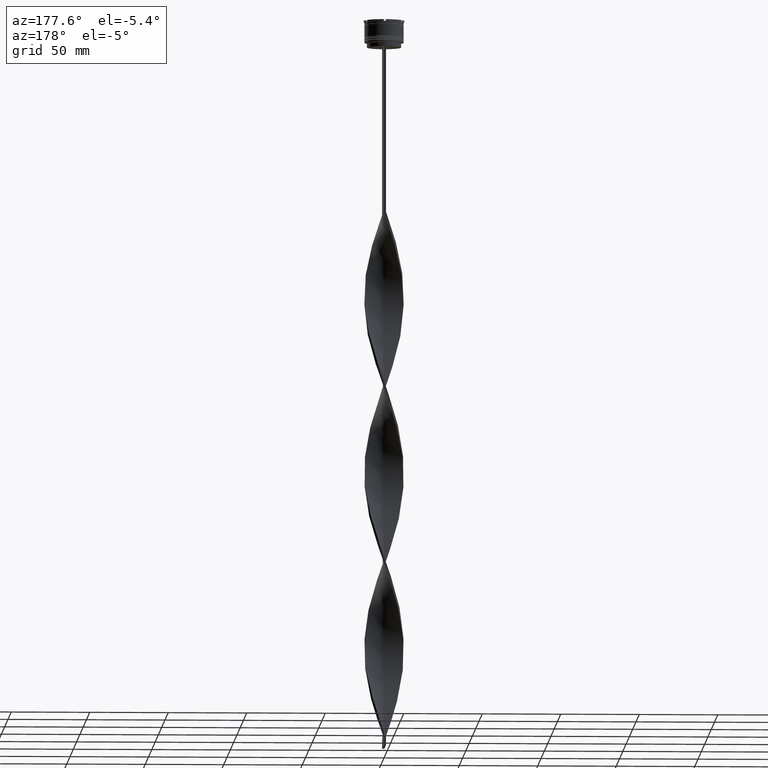
[diagram: clean part render]
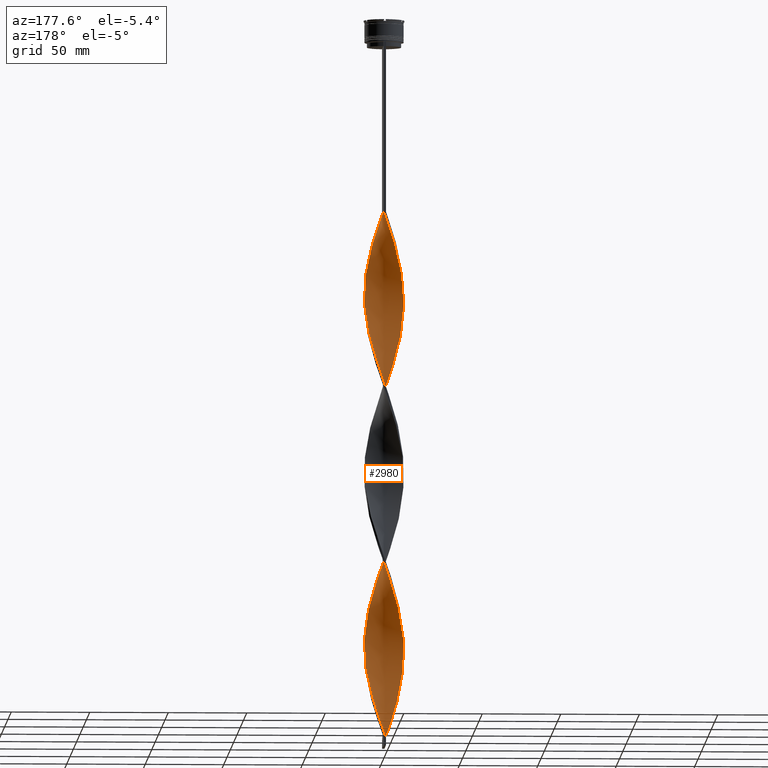
[diagram: same view with one face highlighted and labeled with its STEP entity id]
A machine part, auxiliary view. The second image highlights one B-rep face of the part: STEP entity #2980.
In plain terms, the highlighted face is a freeform B-spline surface patch.
Its self-contained STEP definition (entity closure, byte-faithful):
#5 = CARTESIAN_POINT ( 'NONE',  ( 12.20496158781229035, -2.802037230306999582, -168.8181818181818130 ) ) ;
#12 = CARTESIAN_POINT ( 'NONE',  ( 12.40536724576414862, -1.929121149525764967, -395.3636363636363171 ) ) ;
#13 = B_SPLINE_CURVE_WITH_KNOTS ( 'NONE', 3,
 ( #851, #525, #3718, #1199 ),
 .UNSPECIFIED., .F., .F.,
 ( 4, 4 ),
 ( 0.000000000000000000, 1.000000000000000000 ),
 .UNSPECIFIED. ) ;
#28 = CARTESIAN_POINT ( 'NONE',  ( 5.874911659039469214, -11.05883868218006505, -138.2727272727272805 ) ) ;
#45 = CARTESIAN_POINT ( 'NONE',  ( -10.92114977348146354, -6.127070068571584649, -423.3636363636363740 ) ) ;
#50 = CARTESIAN_POINT ( 'NONE',  ( -12.20496158781229035, 2.802037230306998694, -280.8181818181818699 ) ) ;
#66 = CARTESIAN_POINT ( 'NONE',  ( -11.35936647350535544, -5.345974020927153347, -420.8181818181818130 ) ) ;
#71 = CARTESIAN_POINT ( 'NONE',  ( 11.35936647350535722, -5.345974020927153347, -385.1818181818180733 ) ) ;
#77 = CARTESIAN_POINT ( 'NONE',  ( 0.1440176444849607940, -12.55364105866909874, -237.5454545454545325 ) ) ;
#86 = CARTESIAN_POINT ( 'NONE',  ( 8.112045323846695410, -9.581720387053804799, -145.9090909090909065 ) ) ;
#93 = CARTESIAN_POINT ( 'NONE',  ( -9.393097386316817676, 8.329727870884726215, -262.9999999999999432 ) ) ;
#100 = CARTESIAN_POINT ( 'NONE',  ( 8.955724128969263731, -8.752571355081759208, -265.5454545454545041 ) ) ;
#112 = CARTESIAN_POINT ( 'NONE',  ( 10.92114977348146354, -6.127070068571585537, -158.6363636363636260 ) ) ;
#120 = CARTESIAN_POINT ( 'NONE',  ( 12.08570484828248759, 3.398585475168564685, -410.6363636363636260 ) ) ;
#127 = CARTESIAN_POINT ( 'NONE',  ( -6.127070068571584649, 10.92114977348146354, -143.3636363636363740 ) ) ;
#136 = CARTESIAN_POINT ( 'NONE',  ( 9.581720387053804799, 8.112045323846697187, -201.9090909090909065 ) ) ;
#140 = CARTESIAN_POINT ( 'NONE',  ( -4.241276690728744470, -11.78236275255014576, -224.8181818181818130 ) ) ;
#142 = CARTESIAN_POINT ( 'NONE',  ( -12.26603189480669798, -2.521301559826760741, -296.0909090909090651 ) ) ;
#149 = CARTESIAN_POINT ( 'NONE',  ( -1.929121149525765855, 12.40536724576414862, -130.6363636363636545 ) ) ;
#159 = CARTESIAN_POINT ( 'NONE',  ( -1.929121149525772960, -12.40536724576414684, -339.3636363636363171 ) ) ;
#163 = CARTESIAN_POINT ( 'NONE',  ( -12.47950415221662368, -1.036569397005362880, -184.0909090909090935 ) ) ;
#168 = CARTESIAN_POINT ( 'NONE',  ( -12.50000000000000000, 0.7500000000000009992, -179.0000000000000000 ) ) ;
#190 = CARTESIAN_POINT ( 'NONE',  ( -5.345974020927152459, 11.35936647350535722, -140.8181818181818130 ) ) ;
#198 = CARTESIAN_POINT ( 'NONE',  ( -10.63865670754232795, 6.665855411790015950, -385.1818181818180733 ) ) ;
#214 = CARTESIAN_POINT ( 'NONE',  ( 0.1440176444849607940, -12.55364105866909874, -237.5454545454545325 ) ) ;
#219 = CARTESIAN_POINT ( 'NONE',  ( 11.05883868218006505, -5.874911659039469214, -275.7272727272726911 ) ) ;
#232 = CARTESIAN_POINT ( 'NONE',  ( -12.26603189480669442, 2.521301559826763850, -173.9090909090909065 ) ) ;
#239 = CARTESIAN_POINT ( 'NONE',  ( 12.40536724576414862, 1.929121149525767853, -298.6363636363635692 ) ) ;
#245 = CARTESIAN_POINT ( 'NONE',  ( -7.618946993550366642, -9.938015229887193769, -321.5454545454545610 ) ) ;
#256 = CARTESIAN_POINT ( 'NONE',  ( 11.05883868218006505, -5.874911659039469214, -275.7272727272726911 ) ) ;
#265 = CARTESIAN_POINT ( 'NONE',  ( -9.393097386316819453, -8.329727870884724439, -430.9999999999999432 ) ) ;
#274 = CARTESIAN_POINT ( 'NONE',  ( -3.674953311088235530, -12.00455592986042852, -334.2727272727272521 ) ) ;
#283 = CARTESIAN_POINT ( 'NONE',  ( -11.78236275255014576, 4.241276690728745358, -392.8181818181818699 ) ) ;
#291 = CARTESIAN_POINT ( 'NONE',  ( 10.11018854729806549, 7.388950367818355680, -199.3636363636363455 ) ) ;
#297 = CARTESIAN_POINT ( 'NONE',  ( -1.644017644484961016, 12.44635894133090126, -237.5454545454545325 ) ) ;
#305 = CARTESIAN_POINT ( 'NONE',  ( 6.127070068571584649, -10.92114977348146354, -255.3636363636363455 ) ) ;
#310 = CARTESIAN_POINT ( 'NONE',  ( 12.26603189480669798, 2.521301559826762517, -184.0909090909090935 ) ) ;
#314 = CARTESIAN_POINT ( 'NONE',  ( 4.510463666007690442, 11.68196120168289553, -443.7272727272727479 ) ) ;
#325 = CARTESIAN_POINT ( 'NONE',  ( -6.908166116216011510, 10.48293307345756809, -369.9090909090909349 ) ) ;
#331 = CARTESIAN_POINT ( 'NONE',  ( -3.398585475168561132, 12.08570484828248759, -242.6363636363635976 ) ) ;
#337 = CARTESIAN_POINT ( 'NONE',  ( 11.47902065681779860, 5.083967906288924254, -415.7272727272726911 ) ) ;
#348 = CARTESIAN_POINT ( 'NONE',  ( 12.50000000000000000, -0.7500000000000025535, -291.0000000000000568 ) ) ;
#355 = CARTESIAN_POINT ( 'NONE',  ( 4.241276690728744470, -11.78236275255014576, -133.1818181818181870 ) ) ;
#360 = CARTESIAN_POINT ( 'NONE',  ( 10.11018854729806549, 7.388950367818355680, -423.3636363636363740 ) ) ;
#368 = CARTESIAN_POINT ( 'NONE',  ( 0.7500000000000002220, -12.50000000000000000, -123.0000000000000000 ) ) ;
#375 = CARTESIAN_POINT ( 'NONE',  ( 5.083967906288925143, -11.47902065681779860, -135.7272727272726911 ) ) ;
#381 = CARTESIAN_POINT ( 'NONE',  ( 8.112045323846695410, -9.581720387053804799, -369.9090909090909349 ) ) ;
#388 = CARTESIAN_POINT ( 'NONE',  ( -2.521301559826764294, -12.26603189480669442, -453.9090909090909349 ) ) ;
#396 = CARTESIAN_POINT ( 'NONE',  ( -12.47950415221662368, 1.036569397005365545, -285.9090909090908781 ) ) ;
#407 = CARTESIAN_POINT ( 'NONE',  ( 7.618946993550371971, 9.938015229887190216, -433.5454545454545610 ) ) ;
#416 = CARTESIAN_POINT ( 'NONE',  ( -5.874911659039468326, -11.05883868218006505, -443.7272727272727479 ) ) ;
#420 = CARTESIAN_POINT ( 'NONE',  ( 11.47902065681779860, 5.083967906288924254, -415.7272727272726911 ) ) ;
#426 = CARTESIAN_POINT ( 'NONE',  ( -10.63865670754232795, 6.665855411790015950, -161.1818181818181870 ) ) ;
#436 = CARTESIAN_POINT ( 'NONE',  ( -5.083967906288923366, -11.47902065681780037, -446.2727272727271952 ) ) ;
#440 = CARTESIAN_POINT ( 'NONE',  ( -9.938015229887190216, 7.618946993550371971, -265.5454545454545041 ) ) ;
#445 = CARTESIAN_POINT ( 'NONE',  ( 7.618946993550368418, -9.938015229887193769, -260.4545454545454959 ) ) ;
#462 = CARTESIAN_POINT ( 'NONE',  ( -5.345974020927156900, -11.35936647350535367, -329.1818181818180733 ) ) ;
#468 = CARTESIAN_POINT ( 'NONE',  ( -9.581720387053804799, 8.112045323846698963, -156.0909090909090935 ) ) ;
#474 = ORIENTED_EDGE ( 'NONE', *, *, #2896, .T. ) ;
#482 = CARTESIAN_POINT ( 'NONE',  ( 2.802037230306997806, 12.20496158781229035, -224.8181818181818130 ) ) ;
#491 = CARTESIAN_POINT ( 'NONE',  ( -6.908166116216016839, -10.48293307345756631, -324.0909090909090082 ) ) ;
#497 = CARTESIAN_POINT ( 'NONE',  ( -9.938015229887191992, -7.618946993550368418, -204.4545454545454390 ) ) ;
#507 = CARTESIAN_POINT ( 'NONE',  ( -0.1440176444849599335, -12.55364105866909874, -344.4545454545453822 ) ) ;
#511 = CARTESIAN_POINT ( 'NONE',  ( -3.674953311088230201, 12.00455592986043030, -135.7272727272726911 ) ) ;
#512 = CARTESIAN_POINT ( 'NONE',  ( 4.510463666007690442, 11.68196120168289553, -443.7272727272727479 ) ) ;
#517 = CARTESIAN_POINT ( 'NONE',  ( -7.388950367818358345, -10.11018854729806549, -214.6363636363636260 ) ) ;
#525 = CARTESIAN_POINT ( 'NONE',  ( -0.7500000000000007772, -4.166666666666667851, -459.0000000000000000 ) ) ;
#532 = CARTESIAN_POINT ( 'NONE',  ( -12.50000000000000000, 0.7500000000000009992, -179.0000000000000000 ) ) ;
#538 = CARTESIAN_POINT ( 'NONE',  ( 0.7500000000000002220, 12.50000000000000000, -347.0000000000000000 ) ) ;
#557 = CARTESIAN_POINT ( 'NONE',  ( -8.329727870884726215, 9.393097386316819453, -150.9999999999999716 ) ) ;
#558 = CARTESIAN_POINT ( 'NONE',  ( -0.7499999999999986677, 12.50000000000000000, -459.0000000000000000 ) ) ;
#565 = CARTESIAN_POINT ( 'NONE',  ( 11.47902065681779682, -5.083967906288929584, -278.2727272727271952 ) ) ;
#581 = CARTESIAN_POINT ( 'NONE',  ( -1.929121149525765855, 12.40536724576414862, -130.6363636363636260 ) ) ;
#587 = CARTESIAN_POINT ( 'NONE',  ( 3.398585475168570902, 12.08570484828248581, -339.3636363636362603 ) ) ;
#593 = CARTESIAN_POINT ( 'NONE',  ( -12.40536724576414684, 1.929121149525772294, -283.3636363636363171 ) ) ;
#605 = CARTESIAN_POINT ( 'NONE',  ( -11.05883868218006505, 5.874911659039470102, -163.7272727272727195 ) ) ;
#611 = CARTESIAN_POINT ( 'NONE',  ( -10.48293307345756986, -6.908166116216013286, -425.9090909090908781 ) ) ;
#617 = CARTESIAN_POINT ( 'NONE',  ( 0.1440176444849638193, 12.55364105866909874, -232.4545454545454390 ) ) ;
#629 = CARTESIAN_POINT ( 'NONE',  ( 6.908166116216011510, -10.48293307345756809, -257.9090909090909349 ) ) ;
#638 = CARTESIAN_POINT ( 'NONE',  ( -8.329727870884726215, 9.393097386316819453, -374.9999999999999432 ) ) ;
#645 = CARTESIAN_POINT ( 'NONE',  ( -2.521301559826761629, 12.26603189480669798, -240.0909090909090651 ) ) ;
#654 = CARTESIAN_POINT ( 'NONE',  ( -8.955724128969265507, 8.752571355081757432, -377.5454545454545610 ) ) ;
#662 = CARTESIAN_POINT ( 'NONE',  ( -2.521301559826761629, 12.26603189480669798, -240.0909090909090651 ) ) ;
#667 = CARTESIAN_POINT ( 'NONE',  ( 10.63865670754232617, 6.665855411790015062, -420.8181818181818130 ) ) ;
#674 = CARTESIAN_POINT ( 'NONE',  ( 12.26603189480669442, -2.521301559826764738, -285.9090909090908781 ) ) ;
#680 = CARTESIAN_POINT ( 'NONE',  ( 4.510463666007690442, 11.68196120168289553, -219.7272727272727195 ) ) ;
#695 = CARTESIAN_POINT ( 'NONE',  ( 10.48293307345756986, 6.908166116216011510, -313.9090909090908781 ) ) ;
#702 = CARTESIAN_POINT ( 'NONE',  ( 9.938015229887191992, -7.618946993550370195, -153.5454545454545325 ) ) ;
#709 = CARTESIAN_POINT ( 'NONE',  ( 12.50000000000000000, 0.7499999999999994449, -403.0000000000000000 ) ) ;
#719 = CARTESIAN_POINT ( 'NONE',  ( 9.938015229887190216, 7.618946993550371971, -316.4545454545454390 ) ) ;
#726 = CARTESIAN_POINT ( 'NONE',  ( -8.112045323846697187, 9.581720387053804799, -257.9090909090909349 ) ) ;
#731 = CARTESIAN_POINT ( 'NONE',  ( 2.802037230306997806, 12.20496158781229035, -448.8181818181818130 ) ) ;
#738 = CARTESIAN_POINT ( 'NONE',  ( 5.083967906288925143, -11.47902065681779860, -135.7272727272726911 ) ) ;
#746 = CARTESIAN_POINT ( 'NONE',  ( 10.63865670754232617, 6.665855411790015950, -196.8181818181817846 ) ) ;
#752 = CARTESIAN_POINT ( 'NONE',  ( 5.345974020927156012, 11.35936647350535367, -441.1818181818181301 ) ) ;
#766 = CARTESIAN_POINT ( 'NONE',  ( -10.48293307345756809, 6.908166116216014174, -268.0909090909090082 ) ) ;
#777 = CARTESIAN_POINT ( 'NONE',  ( -3.398585475168563796, -12.08570484828248759, -227.3636363636363171 ) ) ;
#788 = CARTESIAN_POINT ( 'NONE',  ( -6.665855411790016838, -10.63865670754232440, -441.1818181818181301 ) ) ;
#790 = LINE ( 'NONE', #3965, #1017 ) ;
#792 = CARTESIAN_POINT ( 'NONE',  ( 12.00455592986043030, -3.674953311088231089, -390.2727272727272521 ) ) ;
#799 = CARTESIAN_POINT ( 'NONE',  ( 4.510463666007693107, -11.68196120168289553, -250.2727272727273089 ) ) ;
#808 = CARTESIAN_POINT ( 'NONE',  ( 8.752571355081757432, -8.955724128969265507, -148.4545454545454390 ) ) ;
#814 = CARTESIAN_POINT ( 'NONE',  ( -12.44635894133090126, -1.644017644484965679, -293.5454545454544473 ) ) ;
#819 = CARTESIAN_POINT ( 'NONE',  ( 9.581720387053803023, -8.112045323846698963, -268.0909090909090082 ) ) ;
#830 = CARTESIAN_POINT ( 'NONE',  ( -12.26603189480669798, -2.521301559826760741, -296.0909090909090651 ) ) ;
#836 = CARTESIAN_POINT ( 'NONE',  ( -8.955724128969263731, -8.752571355081759208, -316.4545454545454390 ) ) ;
#841 = CARTESIAN_POINT ( 'NONE',  ( -12.00455592986043030, -3.674953311088229313, -191.7272727272727479 ) ) ;
#851 = CARTESIAN_POINT ( 'NONE',  ( -0.7500000000000017764, -12.50000000000000000, -459.0000000000000000 ) ) ;
#855 = CARTESIAN_POINT ( 'NONE',  ( -8.112045323846695410, 9.581720387053804799, -257.9090909090909349 ) ) ;
#863 = CARTESIAN_POINT ( 'NONE',  ( 5.083967906288925143, -11.47902065681779860, -359.7272727272726343 ) ) ;
#868 = CARTESIAN_POINT ( 'NONE',  ( -2.802037230306997806, 12.20496158781229035, -133.1818181818181870 ) ) ;
#878 = CARTESIAN_POINT ( 'NONE',  ( -10.48293307345756631, 6.908166116216014174, -268.0909090909090651 ) ) ;
#882 = CARTESIAN_POINT ( 'NONE',  ( 0.7500000000000002220, 12.50000000000000000, -123.0000000000000000 ) ) ;
#890 = CARTESIAN_POINT ( 'NONE',  ( -10.11018854729806549, 7.388950367818356568, -382.6363636363636829 ) ) ;
#903 = CARTESIAN_POINT ( 'NONE',  ( -3.398585475168564241, -12.08570484828248759, -227.3636363636363455 ) ) ;
#911 = CARTESIAN_POINT ( 'NONE',  ( -12.44635894133090126, 1.644017644484963236, -400.4545454545453822 ) ) ;
#930 = CARTESIAN_POINT ( 'NONE',  ( 0.1440176444849638193, 12.55364105866909874, -456.4545454545454959 ) ) ;
#937 = CARTESIAN_POINT ( 'NONE',  ( -11.35936647350535544, -5.345974020927153347, -420.8181818181818130 ) ) ;
#960 = CARTESIAN_POINT ( 'NONE',  ( -12.00455592986043030, -3.674953311088229313, -415.7272727272726911 ) ) ;
#966 = CARTESIAN_POINT ( 'NONE',  ( -12.00455592986042852, 3.674953311088234642, -278.2727272727272521 ) ) ;
#977 = CARTESIAN_POINT ( 'NONE',  ( -3.674953311088230201, 12.00455592986043030, -359.7272727272726911 ) ) ;
#984 = CARTESIAN_POINT ( 'NONE',  ( 2.521301559826766070, 12.26603189480669442, -341.9090909090909349 ) ) ;
#989 = CARTESIAN_POINT ( 'NONE',  ( -11.05883868218006683, -5.874911659039464773, -306.2727272727272521 ) ) ;
#1005 = CARTESIAN_POINT ( 'NONE',  ( 3.398585475168571346, 12.08570484828248581, -339.3636363636363171 ) ) ;
#1014 = CARTESIAN_POINT ( 'NONE',  ( 5.345974020927156012, 11.35936647350535367, -217.1818181818181586 ) ) ;
#1017 = VECTOR ( 'NONE', #3330, 1000.000000000000000 ) ;
#1021 = CARTESIAN_POINT ( 'NONE',  ( 7.388950367818355680, -10.11018854729806726, -367.3636363636363740 ) ) ;
#1030 = CARTESIAN_POINT ( 'NONE',  ( -12.55364105866909874, -0.1440176444849616544, -405.5454545454545610 ) ) ;
#1035 = CARTESIAN_POINT ( 'NONE',  ( -5.874911659039468326, -11.05883868218006505, -443.7272727272727479 ) ) ;
#1048 = CARTESIAN_POINT ( 'NONE',  ( -12.26603189480669442, 2.521301559826763850, -397.9090909090909349 ) ) ;
#1053 = CARTESIAN_POINT ( 'NONE',  ( 9.581720387053804799, 8.112045323846698963, -201.9090909090908781 ) ) ;
#1059 = CARTESIAN_POINT ( 'NONE',  ( 12.44635894133090126, 1.644017644484961904, -405.5454545454545610 ) ) ;
#1070 = CARTESIAN_POINT ( 'NONE',  ( 2.521301559826766070, 12.26603189480669442, -341.9090909090909349 ) ) ;
#1075 = CARTESIAN_POINT ( 'NONE',  ( 1.644017644484963236, -12.44635894133090126, -125.5454545454545467 ) ) ;
#1093 = CARTESIAN_POINT ( 'NONE',  ( 12.08570484828248759, 3.398585475168565129, -186.6363636363636260 ) ) ;
#1099 = CARTESIAN_POINT ( 'NONE',  ( 12.47950415221662368, -1.036569397005364435, -173.9090909090909065 ) ) ;
#1104 = CARTESIAN_POINT ( 'NONE',  ( 10.92114977348146354, -6.127070068571585537, -382.6363636363636829 ) ) ;
#1113 = CARTESIAN_POINT ( 'NONE',  ( 11.47902065681779860, 5.083967906288924254, -191.7272727272727479 ) ) ;
#1119 = CARTESIAN_POINT ( 'NONE',  ( -2.802037230306999582, -12.20496158781229035, -336.8181818181818130 ) ) ;
#1125 = CARTESIAN_POINT ( 'NONE',  ( -10.11018854729806549, 7.388950367818356568, -158.6363636363636260 ) ) ;
#1132 = CARTESIAN_POINT ( 'NONE',  ( 6.665855411790014173, -10.63865670754232795, -140.8181818181818130 ) ) ;
#1140 = CARTESIAN_POINT ( 'NONE',  ( -12.55364105866909874, 0.1440176444849590454, -288.4545454545454390 ) ) ;
#1149 = CARTESIAN_POINT ( 'NONE',  ( -12.47950415221662368, -1.036569397005362880, -184.0909090909090935 ) ) ;
#1164 = CARTESIAN_POINT ( 'NONE',  ( -11.78236275255014576, -4.241276690728740029, -301.1818181818182438 ) ) ;
#1172 = CARTESIAN_POINT ( 'NONE',  ( -12.26603189480669442, 2.521301559826763850, -173.9090909090909065 ) ) ;
#1182 = CARTESIAN_POINT ( 'NONE',  ( 4.241276690728744470, -11.78236275255014576, -133.1818181818181870 ) ) ;
#1188 = CARTESIAN_POINT ( 'NONE',  ( -12.08570484828248759, -3.398585475168565573, -298.6363636363635692 ) ) ;
#1194 = CARTESIAN_POINT ( 'NONE',  ( -1.036569397005364657, 12.47950415221662368, -128.0909090909090935 ) ) ;
#1199 = CARTESIAN_POINT ( 'NONE',  ( -0.7499999999999986677, 12.50000000000000000, -459.0000000000000000 ) ) ;
#1203 = CARTESIAN_POINT ( 'NONE',  ( -2.802037230306999582, -12.20496158781229035, -336.8181818181818130 ) ) ;
#1208 = CARTESIAN_POINT ( 'NONE',  ( -7.388950367818358345, -10.11018854729806549, -214.6363636363636260 ) ) ;
#1209 = CARTESIAN_POINT ( 'NONE',  ( -0.1440176444849599058, -12.55364105866909874, -344.4545454545453254 ) ) ;
#1215 = CARTESIAN_POINT ( 'NONE',  ( -3.674953311088230201, 12.00455592986043030, -135.7272727272726911 ) ) ;
#1228 = CARTESIAN_POINT ( 'NONE',  ( 4.510463666007690442, 11.68196120168289553, -219.7272727272727195 ) ) ;
#1236 = CARTESIAN_POINT ( 'NONE',  ( -11.68196120168289553, -4.510463666007690442, -194.2727272727272521 ) ) ;
#1242 = CARTESIAN_POINT ( 'NONE',  ( 6.665855411790017726, 10.63865670754232440, -329.1818181818180733 ) ) ;
#1257 = CARTESIAN_POINT ( 'NONE',  ( -10.48293307345756809, -6.908166116216013286, -201.9090909090909065 ) ) ;
#1264 = CARTESIAN_POINT ( 'NONE',  ( -12.08570484828248759, 3.398585475168562908, -395.3636363636362603 ) ) ;
#1276 = CARTESIAN_POINT ( 'NONE',  ( -8.112045323846697187, -9.581720387053803023, -212.0909090909090935 ) ) ;
#1277 = CARTESIAN_POINT ( 'NONE',  ( 6.908166116216014174, 10.48293307345756809, -436.0909090909091219 ) ) ;
#1282 = CARTESIAN_POINT ( 'NONE',  ( -1.036569397005364657, 12.47950415221662368, -352.0909090909091219 ) ) ;
#1296 = VERTEX_POINT ( 'NONE', #2082 ) ;
#1304 = CARTESIAN_POINT ( 'NONE',  ( 5.345974020927153347, -11.35936647350535722, -252.8181818181817846 ) ) ;
#1311 = CARTESIAN_POINT ( 'NONE',  ( 9.393097386316817676, 8.329727870884722662, -319.0000000000000000 ) ) ;
#1320 = CARTESIAN_POINT ( 'NONE',  ( -4.510463666007692218, -11.68196120168289553, -331.7272727272727479 ) ) ;
#1329 = CARTESIAN_POINT ( 'NONE',  ( -4.510463666007691330, 11.68196120168289553, -362.2727272727273089 ) ) ;
#1330 = CARTESIAN_POINT ( 'NONE',  ( 7.618946993550371971, 9.938015229887190216, -433.5454545454545610 ) ) ;
#1336 = CARTESIAN_POINT ( 'NONE',  ( -12.40536724576414862, -1.929121149525766965, -410.6363636363636260 ) ) ;
#1342 = CARTESIAN_POINT ( 'NONE',  ( -12.55364105866909874, 0.1440176444849590454, -288.4545454545454390 ) ) ;
#1353 = CARTESIAN_POINT ( 'NONE',  ( -1.929121149525765855, 12.40536724576414862, -354.6363636363635692 ) ) ;
#1361 = CARTESIAN_POINT ( 'NONE',  ( -4.241276690728744470, -11.78236275255014576, -448.8181818181818130 ) ) ;
#1365 = CARTESIAN_POINT ( 'NONE',  ( -11.35936647350535367, 5.345974020927156900, -273.1818181818181870 ) ) ;
#1379 = CARTESIAN_POINT ( 'NONE',  ( -8.329727870884726215, 9.393097386316819453, -374.9999999999999432 ) ) ;
#1385 = CARTESIAN_POINT ( 'NONE',  ( 0.1440176444849638193, 12.55364105866909874, -232.4545454545454390 ) ) ;
#1390 = CARTESIAN_POINT ( 'NONE',  ( 12.00455592986043030, -3.674953311088231089, -390.2727272727272521 ) ) ;
#1399 = CARTESIAN_POINT ( 'NONE',  ( -12.40536724576414862, -1.929121149525766965, -410.6363636363635692 ) ) ;
#1405 = CARTESIAN_POINT ( 'NONE',  ( -3.398585475168563796, -12.08570484828248759, -451.3636363636364877 ) ) ;
#1418 = CARTESIAN_POINT ( 'NONE',  ( 5.083967906288930472, 11.47902065681779682, -334.2727272727272521 ) ) ;
#1423 = CARTESIAN_POINT ( 'NONE',  ( -5.083967906288926031, 11.47902065681779860, -247.7272727272726911 ) ) ;
#1430 = CARTESIAN_POINT ( 'NONE',  ( 6.908166116216014174, 10.48293307345756631, -436.0909090909090651 ) ) ;
#1447 = CARTESIAN_POINT ( 'NONE',  ( 11.35936647350535722, -5.345974020927153347, -161.1818181818181870 ) ) ;
#1466 = CARTESIAN_POINT ( 'NONE',  ( 1.644017644484963236, -12.44635894133090126, -125.5454545454545467 ) ) ;
#1472 = CARTESIAN_POINT ( 'NONE',  ( 12.20496158781229035, -2.802037230306999582, -392.8181818181818699 ) ) ;
#1475 = CARTESIAN_POINT ( 'NONE',  ( -0.7500000000000017764, -12.50000000000000000, -459.0000000000000000 ) ) ;
#1483 =( BOUNDED_CURVE ( )  B_SPLINE_CURVE ( 2, ( #368, #1466, #3255, #2570, #1182, #738, #1888, #1132, #3656, #86, #808, #4409, #1506, #4384, #112, #2173, #3325, #3606, #3634, #2877, #1796, #1535, #2900, #3231, #4342, #1093, #2529, #1113, #2547, #3982, #2665, #136, #1581, #3833, #2775, #3514, #3862, #2427, #1228, #4458, #482, #1557, #3014, #617, #4219, #297, #645, #2076, #4102, #2750, #1719, #4596, #4550, #855, #3106, #3697, #2990, #878, #1699, #1365, #4195, #966, #1916, #593, #3156, #1342, #3133, #2803, #830, #3462, #2290, #2027, #989, #4432, #2261, #3490, #3351, #2402, #245, #2316, #3745, #2051, #1320, #274, #1203, #159, #3721, #507, #4574, #2640, #1671, #1940, #4077, #3372, #3533, #3927, #1021, #381, #4620, #2144, #4334, #2519, #1104, #2540, #3953, #1390, #2845, #12, #1789, #3975, #709, #1059, #2826, #3620, #2890, #337, #3576, #667, #360, #2453, #1765, #4248, #407, #1430, #3224, #752, #314, #1808, #731, #2187, #4310, #1836, #3270 ),
 .UNSPECIFIED., .F., .T. ) 
 B_SPLINE_CURVE_WITH_KNOTS ( ( 3, 2, 2, 2, 2, 2, 2, 2, 2, 2, 2, 2, 2, 2, 2, 2, 2, 2, 2, 2, 2, 2, 2, 2, 2, 2, 2, 2, 2, 2, 2, 2, 2, 2, 2, 2, 2, 2, 2, 2, 2, 2, 2, 2, 2, 2, 2, 2, 2, 2, 2, 2, 2, 2, 2, 2, 2, 2, 2, 2, 2, 2, 2, 2, 2, 2, 3 ),
 ( 0.000000000000000000, 0.01136363636363636222, 0.02272727272727272443, 0.03409090909090908839, 0.04545454545454544887, 0.05681818181818181629, 0.06818181818181817677, 0.07954545454545454419, 0.09090909090909089774, 0.1022727272727272790, 0.1136363636363636326, 0.1250000000000000000, 0.1363636363636363535, 0.1477272727272727348, 0.1590909090909090884, 0.1704545454545454419, 0.1818181818181817955, 0.1931818181818182045, 0.2045454545454545581, 0.2159090909090909116, 0.2272727272727272652, 0.2386363636363636465, 0.2500000000000000000, 0.2613636363636363535, 0.2727272727272727071, 0.2840909090909091161, 0.2954545454545454697, 0.3068181818181818232, 0.3181818181818181768, 0.3295454545454545303, 0.3409090909090908839, 0.3522727272727272929, 0.3636363636363635909, 0.3750000000000000000, 0.3863636363636364091, 0.3977272727272727071, 0.4090909090909091161, 0.4204545454545454697, 0.4318181818181818232, 0.4431818181818181768, 0.4545454545454545303, 0.4659090909090908839, 0.4772727272727272929, 0.4886363636363635909, 0.5000000000000000000, 0.5113636363636363535, 0.5227272727272727071, 0.5340909090909090606, 0.5454545454545454142, 0.5568181818181817677, 0.5681818181818182323, 0.5795454545454545858, 0.5909090909090909394, 0.6022727272727272929, 0.6136363636363636465, 0.6250000000000000000, 0.6363636363636363535, 0.6477272727272727071, 0.6590909090909090606, 0.6704545454545454142, 0.6818181818181817677, 0.6931818181818182323, 0.7045454545454545858, 0.7159090909090909394, 0.7272727272727271819, 0.7386363636363636465, 0.7500000000000000000 ),
 .UNSPECIFIED. ) 
 CURVE ( )  GEOMETRIC_REPRESENTATION_ITEM ( )  RATIONAL_B_SPLINE_CURVE ( ( 1.000000000000000000, 0.9974521146102535152, 1.000000000000000000, 0.9974521146102535152, 1.000000000000000000, 0.9974521146102535152, 1.000000000000000000, 0.9974521146102535152, 1.000000000000000000, 0.9974521146102535152, 1.000000000000000000, 0.9974521146102535152, 1.000000000000000000, 0.9974521146102535152, 1.000000000000000000, 0.9974521146102535152, 1.000000000000000000, 0.9974521146102535152, 1.000000000000000000, 0.9974521146102535152, 1.000000000000000000, 0.9974521146102535152, 1.000000000000000000, 0.9974521146102535152, 1.000000000000000000, 0.9974521146102535152, 1.000000000000000000, 0.9974521146102535152, 1.000000000000000000, 0.9974521146102535152, 1.000000000000000000, 0.9974521146102535152, 1.000000000000000000, 0.9974521146102535152, 1.000000000000000000, 0.9974521146102535152, 1.000000000000000000, 0.9974521146102535152, 1.000000000000000000, 0.9974521146102535152, 1.000000000000000000, 0.9974521146102535152, 1.000000000000000000, 0.9974521146102535152, 1.000000000000000000, 0.9974521146102535152, 1.000000000000000000, 0.9974521146102535152, 1.000000000000000000, 0.9974521146102535152, 1.000000000000000000, 0.9974521146102535152, 1.000000000000000000, 0.9974521146102535152, 1.000000000000000000, 0.9974521146102535152, 1.000000000000000000, 0.9974521146102535152, 1.000000000000000000, 0.9974521146102535152, 1.000000000000000000, 0.9974521146102535152, 1.000000000000000000, 0.9974521146102535152, 1.000000000000000000, 0.9974521146102535152, 1.000000000000000000, 0.9974521146102535152, 1.000000000000000000, 0.9974521146102535152, 1.000000000000000000, 0.9974521146102535152, 1.000000000000000000, 0.9974521146102535152, 1.000000000000000000, 0.9974521146102535152, 1.000000000000000000, 0.9974521146102535152, 1.000000000000000000, 0.9974521146102535152, 1.000000000000000000, 0.9974521146102535152, 1.000000000000000000, 0.9974521146102535152, 1.000000000000000000, 0.9974521146102535152, 1.000000000000000000, 0.9974521146102535152, 1.000000000000000000, 0.9974521146102535152, 1.000000000000000000, 0.9974521146102535152, 1.000000000000000000, 0.9974521146102535152, 1.000000000000000000, 0.9974521146102535152, 1.000000000000000000, 0.9974521146102535152, 1.000000000000000000, 0.9974521146102535152, 1.000000000000000000, 0.9974521146102535152, 1.000000000000000000, 0.9974521146102535152, 1.000000000000000000, 0.9974521146102535152, 1.000000000000000000, 0.9974521146102535152, 1.000000000000000000, 0.9974521146102535152, 1.000000000000000000, 0.9974521146102535152, 1.000000000000000000, 0.9974521146102535152, 1.000000000000000000, 0.9974521146102535152, 1.000000000000000000, 0.9974521146102535152, 1.000000000000000000, 0.9974521146102535152, 1.000000000000000000, 0.9974521146102535152, 1.000000000000000000, 0.9974521146102535152, 1.000000000000000000, 0.9974521146102535152, 1.000000000000000000, 0.9974521146102535152, 1.000000000000000000, 0.9974521146102535152, 1.000000000000000000, 0.9974521146102535152, 1.000000000000000000 ) ) 
 REPRESENTATION_ITEM ( '' )  );
#1493 = CARTESIAN_POINT ( 'NONE',  ( 7.388950367818355680, -10.11018854729806726, -367.3636363636363740 ) ) ;
#1499 = CARTESIAN_POINT ( 'NONE',  ( 1.929121149525763190, -12.40536724576414862, -242.6363636363635976 ) ) ;
#1506 = CARTESIAN_POINT ( 'NONE',  ( 9.938015229887191992, -7.618946993550370195, -153.5454545454545325 ) ) ;
#1515 = CARTESIAN_POINT ( 'NONE',  ( -12.40536724576414684, 1.929121149525772072, -283.3636363636362603 ) ) ;
#1524 = CARTESIAN_POINT ( 'NONE',  ( -4.241276690728744470, -11.78236275255014576, -224.8181818181818130 ) ) ;
#1535 = CARTESIAN_POINT ( 'NONE',  ( 12.55364105866909874, -0.1440176444849629589, -176.4545454545454390 ) ) ;
#1540 = CARTESIAN_POINT ( 'NONE',  ( -3.674953311088235530, -12.00455592986042852, -334.2727272727272521 ) ) ;
#1547 = CARTESIAN_POINT ( 'NONE',  ( -12.08570484828248759, 3.398585475168562908, -171.3636363636363171 ) ) ;
#1557 = CARTESIAN_POINT ( 'NONE',  ( 1.929121149525765855, 12.40536724576414862, -227.3636363636363455 ) ) ;
#1562 = CARTESIAN_POINT ( 'NONE',  ( -11.47902065681779860, -5.083967906288925143, -303.7272727272727479 ) ) ;
#1568 = CARTESIAN_POINT ( 'NONE',  ( 5.345974020927153347, -11.35936647350535722, -252.8181818181817562 ) ) ;
#1581 = CARTESIAN_POINT ( 'NONE',  ( 8.955724128969265507, 8.752571355081755655, -204.4545454545454390 ) ) ;
#1593 = CARTESIAN_POINT ( 'NONE',  ( -9.938015229887191992, -7.618946993550368418, -428.4545454545454959 ) ) ;
#1596 = ORIENTED_EDGE ( 'NONE', *, *, #4138, .F. ) ;
#1609 = EDGE_CURVE ( 'NONE', #4594, #2589, #13, .T. ) ;
#1613 = CARTESIAN_POINT ( 'NONE',  ( -9.393097386316819453, -8.329727870884724439, -207.0000000000000284 ) ) ;
#1619 = CARTESIAN_POINT ( 'NONE',  ( 11.78236275255014576, -4.241276690728744470, -280.8181818181818699 ) ) ;
#1635 = CARTESIAN_POINT ( 'NONE',  ( -8.955724128969265507, 8.752571355081757432, -153.5454545454545325 ) ) ;
#1640 = CARTESIAN_POINT ( 'NONE',  ( 12.50000000000000000, -0.7500000000000025535, -291.0000000000000568 ) ) ;
#1654 = CARTESIAN_POINT ( 'NONE',  ( 1.036569397005361992, -12.47950415221662368, -240.0909090909090651 ) ) ;
#1662 = CARTESIAN_POINT ( 'NONE',  ( 0.7500000000000002220, -12.50000000000000000, -123.0000000000000000 ) ) ;
#1663 = CARTESIAN_POINT ( 'NONE',  ( -10.92114977348146354, -6.127070068571584649, -423.3636363636363740 ) ) ;
#1671 = CARTESIAN_POINT ( 'NONE',  ( 2.521301559826763850, -12.26603189480669442, -352.0909090909091219 ) ) ;
#1682 = CARTESIAN_POINT ( 'NONE',  ( 1.644017644484960128, 12.44635894133090126, -344.4545454545453822 ) ) ;
#1683 = CARTESIAN_POINT ( 'NONE',  ( 8.329727870884726215, 9.393097386316817676, -430.9999999999999432 ) ) ;
#1692 = CARTESIAN_POINT ( 'NONE',  ( 10.48293307345757164, 6.908166116216011510, -313.9090909090908212 ) ) ;
#1699 = CARTESIAN_POINT ( 'NONE',  ( -10.92114977348146532, 6.127070068571582873, -270.6363636363636829 ) ) ;
#1708 = CARTESIAN_POINT ( 'NONE',  ( -12.44635894133090126, 1.644017644484963236, -400.4545454545453822 ) ) ;
#1715 = CARTESIAN_POINT ( 'NONE',  ( -2.521301559826764294, -12.26603189480669442, -453.9090909090909349 ) ) ;
#1719 = CARTESIAN_POINT ( 'NONE',  ( -5.874911659039470990, 11.05883868218006505, -250.2727272727273089 ) ) ;
#1729 = CARTESIAN_POINT ( 'NONE',  ( -11.05883868218006505, 5.874911659039470102, -387.7272727272727479 ) ) ;
#1735 = CARTESIAN_POINT ( 'NONE',  ( 11.78236275255014576, 4.241276690728744470, -189.1818181818181870 ) ) ;
#1751 = CARTESIAN_POINT ( 'NONE',  ( 12.40536724576414862, 1.929121149525767853, -298.6363636363635692 ) ) ;
#1759 = CARTESIAN_POINT ( 'NONE',  ( 11.47902065681779860, 5.083967906288924254, -191.7272727272727479 ) ) ;
#1765 = CARTESIAN_POINT ( 'NONE',  ( 8.955724128969265507, 8.752571355081755655, -428.4545454545454959 ) ) ;
#1776 = CARTESIAN_POINT ( 'NONE',  ( 12.20496158781229035, 2.802037230306993365, -301.1818181818182438 ) ) ;
#1784 = CARTESIAN_POINT ( 'NONE',  ( -4.241276690728740917, 11.78236275255014576, -245.1818181818181870 ) ) ;
#1789 = CARTESIAN_POINT ( 'NONE',  ( 12.47950415221662368, -1.036569397005364435, -397.9090909090909349 ) ) ;
#1796 = CARTESIAN_POINT ( 'NONE',  ( 12.47950415221662368, -1.036569397005364435, -173.9090909090909065 ) ) ;
#1802 = CARTESIAN_POINT ( 'NONE',  ( 3.398585475168563796, -12.08570484828248759, -130.6363636363636545 ) ) ;
#1808 = CARTESIAN_POINT ( 'NONE',  ( 3.674953311088228425, 12.00455592986043207, -446.2727272727271952 ) ) ;
#1826 = CARTESIAN_POINT ( 'NONE',  ( 4.241276690728744470, -11.78236275255014576, -357.1818181818181301 ) ) ;
#1836 = CARTESIAN_POINT ( 'NONE',  ( 0.1440176444849638193, 12.55364105866909874, -456.4545454545454390 ) ) ;
#1852 = CARTESIAN_POINT ( 'NONE',  ( 11.05883868218006505, 5.874911659039468326, -418.2727272727273089 ) ) ;
#1858 = CARTESIAN_POINT ( 'NONE',  ( -5.874911659039468326, -11.05883868218006505, -219.7272727272727195 ) ) ;
#1873 = CARTESIAN_POINT ( 'NONE',  ( 12.47950415221662368, -1.036569397005364435, -397.9090909090909349 ) ) ;
#1879 = CARTESIAN_POINT ( 'NONE',  ( 8.329727870884724439, -9.393097386316819453, -262.9999999999999432 ) ) ;
#1888 = CARTESIAN_POINT ( 'NONE',  ( 5.874911659039469214, -11.05883868218006505, -138.2727272727272805 ) ) ;
#1897 = CARTESIAN_POINT ( 'NONE',  ( 10.92114977348146354, -6.127070068571585537, -382.6363636363636829 ) ) ;
#1905 = CARTESIAN_POINT ( 'NONE',  ( -8.329727870884726215, 9.393097386316819453, -150.9999999999999432 ) ) ;
#1916 = CARTESIAN_POINT ( 'NONE',  ( -12.20496158781229035, 2.802037230306998694, -280.8181818181818699 ) ) ;
#1922 = CARTESIAN_POINT ( 'NONE',  ( -12.50000000000000000, -0.7499999999999980016, -291.0000000000000568 ) ) ;
#1940 = CARTESIAN_POINT ( 'NONE',  ( 3.398585475168564241, -12.08570484828248759, -354.6363636363635692 ) ) ;
#1944 = CARTESIAN_POINT ( 'NONE',  ( -12.08570484828248759, 3.398585475168563352, -171.3636363636363171 ) ) ;
#1951 = CARTESIAN_POINT ( 'NONE',  ( -7.618946993550370195, 9.938015229887191992, -148.4545454545454390 ) ) ;
#1966 = CARTESIAN_POINT ( 'NONE',  ( -12.20496158781229035, -2.802037230306997806, -189.1818181818181870 ) ) ;
#1972 = CARTESIAN_POINT ( 'NONE',  ( -2.802037230306997806, 12.20496158781229035, -357.1818181818181301 ) ) ;
#1996 = CARTESIAN_POINT ( 'NONE',  ( -12.55364105866909874, -0.1440176444849616544, -405.5454545454545610 ) ) ;
#2021 = CARTESIAN_POINT ( 'NONE',  ( -9.581720387053804799, 8.112045323846698963, -380.0909090909090651 ) ) ;
#2027 = CARTESIAN_POINT ( 'NONE',  ( -11.47902065681779860, -5.083967906288925143, -303.7272727272727479 ) ) ;
#2035 = CARTESIAN_POINT ( 'NONE',  ( -12.44635894133090126, 1.644017644484963236, -176.4545454545454390 ) ) ;
#2043 = CARTESIAN_POINT ( 'NONE',  ( 8.752571355081753879, 8.955724128969267284, -321.5454545454545610 ) ) ;
#2051 = CARTESIAN_POINT ( 'NONE',  ( -5.345974020927156900, -11.35936647350535367, -329.1818181818181301 ) ) ;
#2062 = CARTESIAN_POINT ( 'NONE',  ( -10.63865670754232795, 6.665855411790015062, -385.1818181818181301 ) ) ;
#2069 = CARTESIAN_POINT ( 'NONE',  ( 12.47950415221662368, 1.036569397005361104, -296.0909090909090651 ) ) ;
#2076 = CARTESIAN_POINT ( 'NONE',  ( -3.398585475168561576, 12.08570484828248759, -242.6363636363636260 ) ) ;
#2082 = CARTESIAN_POINT ( 'NONE',  ( 0.7500000000000002220, 12.50000000000000000, -123.0000000000000000 ) ) ;
#2085 = CARTESIAN_POINT ( 'NONE',  ( 4.241276690728745358, 11.78236275255014576, -336.8181818181818130 ) ) ;
#2092 = CARTESIAN_POINT ( 'NONE',  ( -8.112045323846698963, -9.581720387053803023, -436.0909090909091219 ) ) ;
#2106 = CARTESIAN_POINT ( 'NONE',  ( -6.127070068571584649, 10.92114977348146354, -367.3636363636363740 ) ) ;
#2113 = CARTESIAN_POINT ( 'NONE',  ( -0.7499999999999986677, 12.50000000000000000, -235.0000000000000000 ) ) ;
#2131 = CARTESIAN_POINT ( 'NONE',  ( 8.329727870884724439, -9.393097386316819453, -262.9999999999999432 ) ) ;
#2138 = CARTESIAN_POINT ( 'NONE',  ( 12.00455592986043030, -3.674953311088231089, -166.2727272727272236 ) ) ;
#2144 = CARTESIAN_POINT ( 'NONE',  ( 9.393097386316819453, -8.329727870884726215, -374.9999999999999432 ) ) ;
#2161 = CARTESIAN_POINT ( 'NONE',  ( 7.388950367818355680, -10.11018854729806726, -143.3636363636363740 ) ) ;
#2164 = VERTEX_POINT ( 'NONE', #1662 ) ;
#2173 = CARTESIAN_POINT ( 'NONE',  ( 11.35936647350535722, -5.345974020927153347, -161.1818181818181870 ) ) ;
#2180 = CARTESIAN_POINT ( 'NONE',  ( 8.112045323846697187, -9.581720387053804799, -145.9090909090909065 ) ) ;
#2187 = CARTESIAN_POINT ( 'NONE',  ( 1.929121149525765855, 12.40536724576414862, -451.3636363636364308 ) ) ;
#2197 = CARTESIAN_POINT ( 'NONE',  ( -8.752571355081759208, -8.955724128969263731, -433.5454545454545610 ) ) ;
#2204 = CARTESIAN_POINT ( 'NONE',  ( 9.938015229887191992, -7.618946993550370195, -377.5454545454545610 ) ) ;
#2213 = CARTESIAN_POINT ( 'NONE',  ( 0.7500000000000002220, 12.50000000000000000, -123.0000000000000000 ) ) ;
#2226 = CARTESIAN_POINT ( 'NONE',  ( 1.644017644484963236, -12.44635894133090126, -349.5454545454545610 ) ) ;
#2232 = CARTESIAN_POINT ( 'NONE',  ( 6.908166116216011510, -10.48293307345756986, -257.9090909090909349 ) ) ;
#2241 = CARTESIAN_POINT ( 'NONE',  ( -1.644017644484964125, -12.44635894133090126, -456.4545454545454390 ) ) ;
#2246 = CARTESIAN_POINT ( 'NONE',  ( 12.40536724576414862, -1.929121149525764967, -395.3636363636362603 ) ) ;
#2251 = CARTESIAN_POINT ( 'NONE',  ( 10.11018854729806904, -7.388950367818353904, -270.6363636363636829 ) ) ;
#2261 = CARTESIAN_POINT ( 'NONE',  ( -10.11018854729807082, -7.388950367818350351, -311.3636363636363740 ) ) ;
#2270 = CARTESIAN_POINT ( 'NONE',  ( -11.35936647350535367, 5.345974020927156900, -273.1818181818181870 ) ) ;
#2278 = CARTESIAN_POINT ( 'NONE',  ( -9.393097386316819453, -8.329727870884724439, -207.0000000000000284 ) ) ;
#2290 = CARTESIAN_POINT ( 'NONE',  ( -11.78236275255014576, -4.241276690728740029, -301.1818181818182438 ) ) ;
#2296 = CARTESIAN_POINT ( 'NONE',  ( -6.127070068571584649, 10.92114977348146354, -143.3636363636363740 ) ) ;
#2304 = CARTESIAN_POINT ( 'NONE',  ( -6.908166116216011510, 10.48293307345756986, -145.9090909090909065 ) ) ;
#2316 = CARTESIAN_POINT ( 'NONE',  ( -6.908166116216016839, -10.48293307345756453, -324.0909090909090651 ) ) ;
#2320 = CARTESIAN_POINT ( 'NONE',  ( -10.63865670754232795, 6.665855411790015062, -161.1818181818181870 ) ) ;
#2321 = CARTESIAN_POINT ( 'NONE',  ( 6.127070068571586425, 10.92114977348146354, -438.6363636363636829 ) ) ;
#2326 = CARTESIAN_POINT ( 'NONE',  ( 10.63865670754232440, -6.665855411790017726, -273.1818181818181870 ) ) ;
#2340 = CARTESIAN_POINT ( 'NONE',  ( -0.7500000000000017764, -12.50000000000000000, -235.0000000000000000 ) ) ;
#2341 = CARTESIAN_POINT ( 'NONE',  ( 2.802037230306997806, 12.20496158781229035, -448.8181818181818130 ) ) ;
#2347 = CARTESIAN_POINT ( 'NONE',  ( -11.68196120168289553, -4.510463666007690442, -418.2727272727273089 ) ) ;
#2367 = CARTESIAN_POINT ( 'NONE',  ( -12.55364105866909874, -0.1440176444849616544, -181.5454545454545041 ) ) ;
#2373 = CARTESIAN_POINT ( 'NONE',  ( 11.35936647350535722, 5.345974020927152459, -308.8181818181817562 ) ) ;
#2390 = CARTESIAN_POINT ( 'NONE',  ( -11.35936647350535544, -5.345974020927153347, -196.8181818181818130 ) ) ;
#2396 = CARTESIAN_POINT ( 'NONE',  ( 12.55364105866909874, 0.1440176444849655957, -293.5454545454544473 ) ) ;
#2402 = CARTESIAN_POINT ( 'NONE',  ( -8.329727870884727992, -9.393097386316815900, -319.0000000000000000 ) ) ;
#2413 = CARTESIAN_POINT ( 'NONE',  ( -5.345974020927152459, 11.35936647350535722, -364.8181818181818130 ) ) ;
#2420 = CARTESIAN_POINT ( 'NONE',  ( 8.112045323846700740, 9.581720387053801247, -324.0909090909090082 ) ) ;
#2427 = CARTESIAN_POINT ( 'NONE',  ( 5.345974020927156012, 11.35936647350535367, -217.1818181818181586 ) ) ;
#2438 = CARTESIAN_POINT ( 'NONE',  ( 10.92114977348146709, 6.127070068571577544, -311.3636363636363740 ) ) ;
#2447 = CARTESIAN_POINT ( 'NONE',  ( 3.674953311088228425, 12.00455592986043207, -222.2727272727272805 ) ) ;
#2453 = CARTESIAN_POINT ( 'NONE',  ( 9.581720387053804799, 8.112045323846697187, -425.9090909090908212 ) ) ;
#2463 = CARTESIAN_POINT ( 'NONE',  ( 12.44635894133090126, -1.644017644484959240, -288.4545454545454390 ) ) ;
#2469 = CARTESIAN_POINT ( 'NONE',  ( -1.644017644484964125, -12.44635894133090126, -456.4545454545454959 ) ) ;
#2483 = CARTESIAN_POINT ( 'NONE',  ( -12.00455592986043030, -3.674953311088229313, -415.7272727272726911 ) ) ;
#2488 = CARTESIAN_POINT ( 'NONE',  ( 7.618946993550371971, 9.938015229887190216, -209.5454545454545325 ) ) ;
#2506 = CARTESIAN_POINT ( 'NONE',  ( 7.388950367818353904, 10.11018854729806726, -326.6363636363636260 ) ) ;
#2512 = CARTESIAN_POINT ( 'NONE',  ( 1.036569397005364879, 12.47950415221662368, -229.9090909090909065 ) ) ;
#2519 = CARTESIAN_POINT ( 'NONE',  ( 10.48293307345756809, -6.908166116216013286, -380.0909090909090651 ) ) ;
#2529 = CARTESIAN_POINT ( 'NONE',  ( 11.78236275255014576, 4.241276690728744470, -189.1818181818181870 ) ) ;
#2535 = CARTESIAN_POINT ( 'NONE',  ( 12.44635894133090126, 1.644017644484961904, -181.5454545454545041 ) ) ;
#2540 = CARTESIAN_POINT ( 'NONE',  ( 11.35936647350535722, -5.345974020927153347, -385.1818181818181301 ) ) ;
#2547 = CARTESIAN_POINT ( 'NONE',  ( 11.05883868218006505, 5.874911659039468326, -194.2727272727272521 ) ) ;
#2554 = CARTESIAN_POINT ( 'NONE',  ( 8.752571355081757432, -8.955724128969265507, -372.4545454545454959 ) ) ;
#2560 = CARTESIAN_POINT ( 'NONE',  ( -10.48293307345756986, -6.908166116216013286, -201.9090909090908781 ) ) ;
#2570 = CARTESIAN_POINT ( 'NONE',  ( 3.398585475168564241, -12.08570484828248759, -130.6363636363636260 ) ) ;
#2575 = CARTESIAN_POINT ( 'NONE',  ( 2.521301559826763850, -12.26603189480669442, -352.0909090909091219 ) ) ;
#2584 = CARTESIAN_POINT ( 'NONE',  ( 6.127070068571584649, -10.92114977348146354, -255.3636363636363455 ) ) ;
#2589 = VERTEX_POINT ( 'NONE', #4328 ) ;
#2600 = CARTESIAN_POINT ( 'NONE',  ( 10.48293307345756986, -6.908166116216013286, -380.0909090909090651 ) ) ;
#2605 = CARTESIAN_POINT ( 'NONE',  ( 1.036569397005361992, -12.47950415221662368, -240.0909090909090651 ) ) ;
#2616 = CARTESIAN_POINT ( 'NONE',  ( -7.388950367818358345, -10.11018854729806549, -438.6363636363636829 ) ) ;
#2622 = CARTESIAN_POINT ( 'NONE',  ( -10.63865670754232795, -6.665855411790015062, -308.8181818181817562 ) ) ;
#2628 = CARTESIAN_POINT ( 'NONE',  ( -12.44635894133090126, 1.644017644484963236, -176.4545454545454390 ) ) ;
#2640 = CARTESIAN_POINT ( 'NONE',  ( 1.644017644484963236, -12.44635894133090126, -349.5454545454545610 ) ) ;
#2647 = CARTESIAN_POINT ( 'NONE',  ( -5.874911659039468326, -11.05883868218006505, -219.7272727272727195 ) ) ;
#2649 = CARTESIAN_POINT ( 'NONE',  ( 0.7500000000000002220, -12.50000000000000000, -347.0000000000000000 ) ) ;
#2654 = CARTESIAN_POINT ( 'NONE',  ( -10.92114977348146354, -6.127070068571584649, -199.3636363636363455 ) ) ;
#2665 = CARTESIAN_POINT ( 'NONE',  ( 10.11018854729806549, 7.388950367818355680, -199.3636363636363455 ) ) ;
#2670 = CARTESIAN_POINT ( 'NONE',  ( -4.510463666007691330, 11.68196120168289553, -138.2727272727272805 ) ) ;
#2677 = CARTESIAN_POINT ( 'NONE',  ( 4.241276690728745358, 11.78236275255014576, -336.8181818181818130 ) ) ;
#2690 = CARTESIAN_POINT ( 'NONE',  ( -10.11018854729806549, 7.388950367818356568, -158.6363636363636260 ) ) ;
#2691 = CARTESIAN_POINT ( 'NONE',  ( 9.581720387053804799, 8.112045323846698963, -425.9090909090908781 ) ) ;
#2698 = CARTESIAN_POINT ( 'NONE',  ( -4.510463666007691330, 11.68196120168289553, -362.2727272727273089 ) ) ;
#2711 = CARTESIAN_POINT ( 'NONE',  ( 1.929121149525763412, -12.40536724576414862, -242.6363636363636260 ) ) ;
#2719 = CARTESIAN_POINT ( 'NONE',  ( -6.127070068571584649, 10.92114977348146354, -367.3636363636363740 ) ) ;
#2737 = CARTESIAN_POINT ( 'NONE',  ( -6.908166116216011510, 10.48293307345756809, -145.9090909090909065 ) ) ;
#2744 = CARTESIAN_POINT ( 'NONE',  ( 5.083967906288930472, 11.47902065681779682, -334.2727272727272521 ) ) ;
#2750 = CARTESIAN_POINT ( 'NONE',  ( -5.083967906288926031, 11.47902065681779860, -247.7272727272727195 ) ) ;
#2762 = CARTESIAN_POINT ( 'NONE',  ( 12.55364105866909874, 0.1440176444849655957, -293.5454545454545041 ) ) ;
#2763 = CARTESIAN_POINT ( 'NONE',  ( 1.036569397005364879, 12.47950415221662368, -453.9090909090909349 ) ) ;
#2769 = CARTESIAN_POINT ( 'NONE',  ( -12.20496158781229035, -2.802037230306997806, -413.1818181818181870 ) ) ;
#2775 = CARTESIAN_POINT ( 'NONE',  ( 7.618946993550371971, 9.938015229887190216, -209.5454545454545325 ) ) ;
#2785 = CARTESIAN_POINT ( 'NONE',  ( 9.393097386316817676, 8.329727870884722662, -319.0000000000000000 ) ) ;
#2795 = CARTESIAN_POINT ( 'NONE',  ( 11.05883868218006505, 5.874911659039468326, -194.2727272727272521 ) ) ;
#2803 = CARTESIAN_POINT ( 'NONE',  ( -12.44635894133090126, -1.644017644484965901, -293.5454545454545041 ) ) ;
#2815 = CARTESIAN_POINT ( 'NONE',  ( -12.08570484828248759, 3.398585475168563352, -395.3636363636363171 ) ) ;
#2818 = EDGE_CURVE ( 'NONE', #1296, #4594, #3413, .T. ) ;
#2822 = CARTESIAN_POINT ( 'NONE',  ( 1.929121149525765855, 12.40536724576414862, -227.3636363636363171 ) ) ;
#2826 = CARTESIAN_POINT ( 'NONE',  ( 12.26603189480669798, 2.521301559826762517, -408.0909090909091219 ) ) ;
#2834 = CARTESIAN_POINT ( 'NONE',  ( -12.20496158781229035, -2.802037230306997806, -413.1818181818181870 ) ) ;
#2839 = CARTESIAN_POINT ( 'NONE',  ( 12.50000000000000000, 0.7499999999999994449, -179.0000000000000000 ) ) ;
#2845 = CARTESIAN_POINT ( 'NONE',  ( 12.20496158781229035, -2.802037230306999582, -392.8181818181818699 ) ) ;
#2854 = CARTESIAN_POINT ( 'NONE',  ( 7.618946993550368418, -9.938015229887193769, -260.4545454545454959 ) ) ;
#2860 = CARTESIAN_POINT ( 'NONE',  ( -5.874911659039470990, 11.05883868218006505, -250.2727272727273089 ) ) ;
#2877 = CARTESIAN_POINT ( 'NONE',  ( 12.40536724576414862, -1.929121149525764967, -171.3636363636363171 ) ) ;
#2884 = CARTESIAN_POINT ( 'NONE',  ( 12.40536724576414862, -1.929121149525764967, -171.3636363636363171 ) ) ;
#2890 = CARTESIAN_POINT ( 'NONE',  ( 11.78236275255014576, 4.241276690728744470, -413.1818181818181870 ) ) ;
#2896 = EDGE_CURVE ( 'NONE', #2164, #2589, #1483, .T. ) ;
#2900 = CARTESIAN_POINT ( 'NONE',  ( 12.50000000000000000, 0.7499999999999994449, -179.0000000000000000 ) ) ;
#2905 = CARTESIAN_POINT ( 'NONE',  ( 12.50000000000000000, 0.7499999999999994449, -403.0000000000000000 ) ) ;
#2911 = FACE_OUTER_BOUND ( 'NONE', #3770, .T. ) ;
#2920 = CARTESIAN_POINT ( 'NONE',  ( -3.398585475168564241, -12.08570484828248759, -451.3636363636364308 ) ) ;
#2927 = CARTESIAN_POINT ( 'NONE',  ( 5.874911659039469214, -11.05883868218006505, -362.2727272727273089 ) ) ;
#2933 = CARTESIAN_POINT ( 'NONE',  ( -8.955724128969265507, 8.752571355081757432, -153.5454545454545325 ) ) ;
#2943 = CARTESIAN_POINT ( 'NONE',  ( -8.112045323846697187, -9.581720387053803023, -436.0909090909090651 ) ) ;
#2950 = CARTESIAN_POINT ( 'NONE',  ( -7.618946993550366642, -9.938015229887193769, -321.5454545454545610 ) ) ;
#2960 = CARTESIAN_POINT ( 'NONE',  ( -11.05883868218006505, 5.874911659039470102, -163.7272727272727195 ) ) ;
#2974 = CARTESIAN_POINT ( 'NONE',  ( 11.78236275255014576, 4.241276690728744470, -413.1818181818181870 ) ) ;
#2980 = ADVANCED_FACE ( 'NONE', ( #2911 ), #4065, .T. ) ;
#2981 = CARTESIAN_POINT ( 'NONE',  ( -12.20496158781229035, -2.802037230306997806, -189.1818181818181870 ) ) ;
#2990 = CARTESIAN_POINT ( 'NONE',  ( -9.938015229887190216, 7.618946993550371971, -265.5454545454545041 ) ) ;
#2995 = CARTESIAN_POINT ( 'NONE',  ( -1.036569397005364657, 12.47950415221662368, -128.0909090909090935 ) ) ;
#2997 = CARTESIAN_POINT ( 'NONE',  ( -10.92114977348146532, 6.127070068571582873, -270.6363636363636829 ) ) ;
#3002 = CARTESIAN_POINT ( 'NONE',  ( -12.40536724576414862, -1.929121149525766965, -186.6363636363636260 ) ) ;
#3014 = CARTESIAN_POINT ( 'NONE',  ( 1.036569397005364879, 12.47950415221662368, -229.9090909090909065 ) ) ;
#3020 = CARTESIAN_POINT ( 'NONE',  ( -12.00455592986043030, -3.674953311088229313, -191.7272727272727479 ) ) ;
#3029 = CARTESIAN_POINT ( 'NONE',  ( -1.929121149525765855, 12.40536724576414862, -354.6363636363635692 ) ) ;
#3053 = CARTESIAN_POINT ( 'NONE',  ( -11.47902065681779860, 5.083967906288926031, -390.2727272727272521 ) ) ;
#3074 = CARTESIAN_POINT ( 'NONE',  ( 1.644017644484960128, 12.44635894133090126, -344.4545454545453254 ) ) ;
#3089 = CARTESIAN_POINT ( 'NONE',  ( 3.674953311088231089, -12.00455592986043030, -247.7272727272727195 ) ) ;
#3090 = CARTESIAN_POINT ( 'NONE',  ( 1.929121149525765855, 12.40536724576414862, -451.3636363636364877 ) ) ;
#3097 = CARTESIAN_POINT ( 'NONE',  ( -12.26603189480669442, 2.521301559826763850, -397.9090909090909349 ) ) ;
#3106 = CARTESIAN_POINT ( 'NONE',  ( -8.752571355081755655, 8.955724128969267284, -260.4545454545454959 ) ) ;
#3117 = CARTESIAN_POINT ( 'NONE',  ( 6.665855411790017726, 10.63865670754232440, -329.1818181818181301 ) ) ;
#3124 = CARTESIAN_POINT ( 'NONE',  ( -7.618946993550370195, 9.938015229887191992, -372.4545454545454959 ) ) ;
#3133 = CARTESIAN_POINT ( 'NONE',  ( -12.50000000000000000, -0.7499999999999980016, -291.0000000000000568 ) ) ;
#3143 = CARTESIAN_POINT ( 'NONE',  ( 8.752571355081753879, 8.955724128969267284, -321.5454545454545610 ) ) ;
#3151 = CARTESIAN_POINT ( 'NONE',  ( 8.329727870884726215, 9.393097386316817676, -207.0000000000000284 ) ) ;
#3156 = CARTESIAN_POINT ( 'NONE',  ( -12.47950415221662368, 1.036569397005365545, -285.9090909090908781 ) ) ;
#3165 = CARTESIAN_POINT ( 'NONE',  ( 9.581720387053803023, -8.112045323846697187, -268.0909090909090651 ) ) ;
#3173 = CARTESIAN_POINT ( 'NONE',  ( 8.955724128969265507, 8.752571355081755655, -204.4545454545454390 ) ) ;
#3192 = CARTESIAN_POINT ( 'NONE',  ( -10.11018854729806549, 7.388950367818356568, -382.6363636363636829 ) ) ;
#3198 = CARTESIAN_POINT ( 'NONE',  ( 11.68196120168289553, -4.510463666007692218, -163.7272727272727195 ) ) ;
#3212 = CARTESIAN_POINT ( 'NONE',  ( 11.35936647350535722, 5.345974020927152459, -308.8181818181817562 ) ) ;
#3218 = CARTESIAN_POINT ( 'NONE',  ( 2.521301559826763850, -12.26603189480669442, -128.0909090909090935 ) ) ;
#3224 = CARTESIAN_POINT ( 'NONE',  ( 6.127070068571586425, 10.92114977348146354, -438.6363636363636829 ) ) ;
#3231 = CARTESIAN_POINT ( 'NONE',  ( 12.44635894133090126, 1.644017644484961904, -181.5454545454545041 ) ) ;
#3237 = CARTESIAN_POINT ( 'NONE',  ( -0.7500000000000017764, -12.50000000000000000, -459.0000000000000000 ) ) ;
#3255 = CARTESIAN_POINT ( 'NONE',  ( 2.521301559826763850, -12.26603189480669442, -128.0909090909090935 ) ) ;
#3263 = CARTESIAN_POINT ( 'NONE',  ( -1.036569397005366655, -12.47950415221662368, -341.9090909090909349 ) ) ;
#3270 = CARTESIAN_POINT ( 'NONE',  ( -0.7499999999999986677, 12.50000000000000000, -459.0000000000000000 ) ) ;
#3282 = CARTESIAN_POINT ( 'NONE',  ( -11.68196120168289553, -4.510463666007690442, -418.2727272727273089 ) ) ;
#3287 = CARTESIAN_POINT ( 'NONE',  ( -9.581720387053806576, -8.112045323846697187, -313.9090909090908212 ) ) ;
#3293 = CARTESIAN_POINT ( 'NONE',  ( -2.521301559826764294, -12.26603189480669442, -229.9090909090909065 ) ) ;
#3300 = CARTESIAN_POINT ( 'NONE',  ( -9.938015229887191992, -7.618946993550368418, -428.4545454545454959 ) ) ;
#3307 = CARTESIAN_POINT ( 'NONE',  ( -12.00455592986042852, 3.674953311088234642, -278.2727272727271952 ) ) ;
#3313 = CARTESIAN_POINT ( 'NONE',  ( -5.345974020927152459, 11.35936647350535722, -140.8181818181818130 ) ) ;
#3325 = CARTESIAN_POINT ( 'NONE',  ( 11.68196120168289553, -4.510463666007692218, -163.7272727272727195 ) ) ;
#3330 = DIRECTION ( 'NONE',  ( 0.000000000000000000, 1.000000000000000000, 0.000000000000000000 ) ) ;
#3333 = CARTESIAN_POINT ( 'NONE',  ( 12.44635894133090126, 1.644017644484961904, -405.5454545454545610 ) ) ;
#3340 = CARTESIAN_POINT ( 'NONE',  ( -8.112045323846698963, -9.581720387053803023, -212.0909090909090651 ) ) ;
#3351 = CARTESIAN_POINT ( 'NONE',  ( -8.955724128969263731, -8.752571355081759208, -316.4545454545454390 ) ) ;
#3356 = CARTESIAN_POINT ( 'NONE',  ( -8.752571355081755655, 8.955724128969267284, -260.4545454545454959 ) ) ;
#3362 = CARTESIAN_POINT ( 'NONE',  ( -11.68196120168289553, -4.510463666007690442, -194.2727272727272521 ) ) ;
#3372 = CARTESIAN_POINT ( 'NONE',  ( 5.083967906288925143, -11.47902065681779860, -359.7272727272726911 ) ) ;
#3376 = CARTESIAN_POINT ( 'NONE',  ( -12.40536724576414862, -1.929121149525766965, -186.6363636363636260 ) ) ;
#3382 = CARTESIAN_POINT ( 'NONE',  ( -11.78236275255014576, 4.241276690728745358, -168.8181818181818130 ) ) ;
#3401 = CARTESIAN_POINT ( 'NONE',  ( -10.92114977348146354, -6.127070068571584649, -199.3636363636363455 ) ) ;
#3409 = CARTESIAN_POINT ( 'NONE',  ( -5.345974020927152459, 11.35936647350535722, -364.8181818181818130 ) ) ;
#3413 =( BOUNDED_CURVE ( )  B_SPLINE_CURVE ( 2, ( #882, #4181, #2995, #581, #4109, #511, #2670, #190, #2296, #2737, #3726, #557, #1635, #4465, #2690, #2320, #605, #3426, #3749, #1944, #232, #2035, #532, #2367, #163, #3376, #1966, #3020, #1236, #2390, #3401, #1257, #4128, #1613, #4436, #1276, #1208, #4489, #2647, #3797, #140, #903, #4507, #4084, #2340, #214, #1654, #2711, #3450, #3089, #4531, #1304, #305, #629, #2854, #2131, #4232, #3165, #4560, #4608, #256, #3913, #3471, #4296, #674, #2463, #348, #2762, #4277, #1751, #1776, #3542, #3564, #3212, #2438, #695, #719, #2785, #3143, #3893, #2506, #3117, #4649, #1418, #2085, #1005, #1070, #1682, #3942, #3872, #3845, #1353, #3523, #977, #1329, #2413, #2106, #325, #4584, #1379, #654, #4206, #3192, #2062, #1729, #3500, #283, #2815, #1048, #1708, #4257, #1030, #4630, #1399, #2834, #2483, #3282, #66, #45, #3586, #3300, #4322, #2197, #2943, #2616, #788, #416, #436, #4050, #2920, #388, #2241, #4009 ),
 .UNSPECIFIED., .F., .T. ) 
 B_SPLINE_CURVE_WITH_KNOTS ( ( 3, 2, 2, 2, 2, 2, 2, 2, 2, 2, 2, 2, 2, 2, 2, 2, 2, 2, 2, 2, 2, 2, 2, 2, 2, 2, 2, 2, 2, 2, 2, 2, 2, 2, 2, 2, 2, 2, 2, 2, 2, 2, 2, 2, 2, 2, 2, 2, 2, 2, 2, 2, 2, 2, 2, 2, 2, 2, 2, 2, 2, 2, 2, 2, 2, 2, 3 ),
 ( 0.000000000000000000, 0.01136363636363636222, 0.02272727272727272443, 0.03409090909090908839, 0.04545454545454544887, 0.05681818181818181629, 0.06818181818181817677, 0.07954545454545454419, 0.09090909090909089774, 0.1022727272727272790, 0.1136363636363636326, 0.1250000000000000000, 0.1363636363636363535, 0.1477272727272727348, 0.1590909090909090884, 0.1704545454545454419, 0.1818181818181817955, 0.1931818181818182045, 0.2045454545454545581, 0.2159090909090909116, 0.2272727272727272652, 0.2386363636363636465, 0.2500000000000000000, 0.2613636363636363535, 0.2727272727272727071, 0.2840909090909091161, 0.2954545454545454697, 0.3068181818181818232, 0.3181818181818181768, 0.3295454545454545303, 0.3409090909090908839, 0.3522727272727272929, 0.3636363636363635909, 0.3750000000000000000, 0.3863636363636364091, 0.3977272727272727071, 0.4090909090909091161, 0.4204545454545454697, 0.4318181818181818232, 0.4431818181818181768, 0.4545454545454545303, 0.4659090909090908839, 0.4772727272727272929, 0.4886363636363635909, 0.5000000000000000000, 0.5113636363636363535, 0.5227272727272727071, 0.5340909090909090606, 0.5454545454545454142, 0.5568181818181817677, 0.5681818181818182323, 0.5795454545454545858, 0.5909090909090909394, 0.6022727272727272929, 0.6136363636363636465, 0.6250000000000000000, 0.6363636363636363535, 0.6477272727272727071, 0.6590909090909090606, 0.6704545454545454142, 0.6818181818181817677, 0.6931818181818182323, 0.7045454545454545858, 0.7159090909090909394, 0.7272727272727271819, 0.7386363636363636465, 0.7500000000000000000 ),
 .UNSPECIFIED. ) 
 CURVE ( )  GEOMETRIC_REPRESENTATION_ITEM ( )  RATIONAL_B_SPLINE_CURVE ( ( 1.000000000000000000, 0.9974521146102535152, 1.000000000000000000, 0.9974521146102535152, 1.000000000000000000, 0.9974521146102535152, 1.000000000000000000, 0.9974521146102535152, 1.000000000000000000, 0.9974521146102535152, 1.000000000000000000, 0.9974521146102535152, 1.000000000000000000, 0.9974521146102535152, 1.000000000000000000, 0.9974521146102535152, 1.000000000000000000, 0.9974521146102535152, 1.000000000000000000, 0.9974521146102535152, 1.000000000000000000, 0.9974521146102535152, 1.000000000000000000, 0.9974521146102535152, 1.000000000000000000, 0.9974521146102535152, 1.000000000000000000, 0.9974521146102535152, 1.000000000000000000, 0.9974521146102535152, 1.000000000000000000, 0.9974521146102535152, 1.000000000000000000, 0.9974521146102535152, 1.000000000000000000, 0.9974521146102535152, 1.000000000000000000, 0.9974521146102535152, 1.000000000000000000, 0.9974521146102535152, 1.000000000000000000, 0.9974521146102535152, 1.000000000000000000, 0.9974521146102535152, 1.000000000000000000, 0.9974521146102535152, 1.000000000000000000, 0.9974521146102535152, 1.000000000000000000, 0.9974521146102535152, 1.000000000000000000, 0.9974521146102535152, 1.000000000000000000, 0.9974521146102535152, 1.000000000000000000, 0.9974521146102535152, 1.000000000000000000, 0.9974521146102535152, 1.000000000000000000, 0.9974521146102535152, 1.000000000000000000, 0.9974521146102535152, 1.000000000000000000, 0.9974521146102535152, 1.000000000000000000, 0.9974521146102535152, 1.000000000000000000, 0.9974521146102535152, 1.000000000000000000, 0.9974521146102535152, 1.000000000000000000, 0.9974521146102535152, 1.000000000000000000, 0.9974521146102535152, 1.000000000000000000, 0.9974521146102535152, 1.000000000000000000, 0.9974521146102535152, 1.000000000000000000, 0.9974521146102535152, 1.000000000000000000, 0.9974521146102535152, 1.000000000000000000, 0.9974521146102535152, 1.000000000000000000, 0.9974521146102535152, 1.000000000000000000, 0.9974521146102535152, 1.000000000000000000, 0.9974521146102535152, 1.000000000000000000, 0.9974521146102535152, 1.000000000000000000, 0.9974521146102535152, 1.000000000000000000, 0.9974521146102535152, 1.000000000000000000, 0.9974521146102535152, 1.000000000000000000, 0.9974521146102535152, 1.000000000000000000, 0.9974521146102535152, 1.000000000000000000, 0.9974521146102535152, 1.000000000000000000, 0.9974521146102535152, 1.000000000000000000, 0.9974521146102535152, 1.000000000000000000, 0.9974521146102535152, 1.000000000000000000, 0.9974521146102535152, 1.000000000000000000, 0.9974521146102535152, 1.000000000000000000, 0.9974521146102535152, 1.000000000000000000, 0.9974521146102535152, 1.000000000000000000, 0.9974521146102535152, 1.000000000000000000, 0.9974521146102535152, 1.000000000000000000, 0.9974521146102535152, 1.000000000000000000, 0.9974521146102535152, 1.000000000000000000, 0.9974521146102535152, 1.000000000000000000, 0.9974521146102535152, 1.000000000000000000, 0.9974521146102535152, 1.000000000000000000 ) ) 
 REPRESENTATION_ITEM ( '' )  );
#3426 = CARTESIAN_POINT ( 'NONE',  ( -11.47902065681779860, 5.083967906288926031, -166.2727272727272521 ) ) ;
#3433 = CARTESIAN_POINT ( 'NONE',  ( -11.78236275255014576, 4.241276690728745358, -392.8181818181818699 ) ) ;
#3450 = CARTESIAN_POINT ( 'NONE',  ( 2.802037230306994253, -12.20496158781229035, -245.1818181818181870 ) ) ;
#3456 = CARTESIAN_POINT ( 'NONE',  ( 9.938015229887190216, 7.618946993550371971, -316.4545454545454390 ) ) ;
#3462 = CARTESIAN_POINT ( 'NONE',  ( -12.08570484828248759, -3.398585475168566017, -298.6363636363635692 ) ) ;
#3471 = CARTESIAN_POINT ( 'NONE',  ( 11.78236275255014576, -4.241276690728744470, -280.8181818181818699 ) ) ;
#3481 = CARTESIAN_POINT ( 'NONE',  ( -11.05883868218006505, 5.874911659039470102, -387.7272727272727479 ) ) ;
#3490 = CARTESIAN_POINT ( 'NONE',  ( -9.581720387053806576, -8.112045323846695410, -313.9090909090908781 ) ) ;
#3500 = CARTESIAN_POINT ( 'NONE',  ( -11.47902065681779860, 5.083967906288926031, -390.2727272727272521 ) ) ;
#3507 = CARTESIAN_POINT ( 'NONE',  ( 11.68196120168289731, 4.510463666007686889, -306.2727272727272521 ) ) ;
#3514 = CARTESIAN_POINT ( 'NONE',  ( 6.908166116216014174, 10.48293307345756631, -212.0909090909090935 ) ) ;
#3523 = CARTESIAN_POINT ( 'NONE',  ( -2.802037230306997806, 12.20496158781229035, -357.1818181818181301 ) ) ;
#3528 = CARTESIAN_POINT ( 'NONE',  ( 10.92114977348146354, -6.127070068571585537, -158.6363636363636260 ) ) ;
#3533 = CARTESIAN_POINT ( 'NONE',  ( 5.874911659039469214, -11.05883868218006505, -362.2727272727273089 ) ) ;
#3542 = CARTESIAN_POINT ( 'NONE',  ( 12.00455592986043030, 3.674953311088230201, -303.7272727272727479 ) ) ;
#3548 = CARTESIAN_POINT ( 'NONE',  ( -1.644017644484961016, 12.44635894133090126, -237.5454545454545325 ) ) ;
#3564 = CARTESIAN_POINT ( 'NONE',  ( 11.68196120168289731, 4.510463666007686889, -306.2727272727272521 ) ) ;
#3571 = CARTESIAN_POINT ( 'NONE',  ( 12.55364105866909874, -0.1440176444849629589, -176.4545454545454390 ) ) ;
#3576 = CARTESIAN_POINT ( 'NONE',  ( 11.05883868218006505, 5.874911659039468326, -418.2727272727273089 ) ) ;
#3586 = CARTESIAN_POINT ( 'NONE',  ( -10.48293307345756809, -6.908166116216013286, -425.9090909090908212 ) ) ;
#3594 = CARTESIAN_POINT ( 'NONE',  ( -6.665855411790016838, -10.63865670754232440, -441.1818181818181301 ) ) ;
#3606 = CARTESIAN_POINT ( 'NONE',  ( 12.00455592986043030, -3.674953311088231089, -166.2727272727272521 ) ) ;
#3611 = CARTESIAN_POINT ( 'NONE',  ( 9.393097386316819453, -8.329727870884726215, -374.9999999999999432 ) ) ;
#3620 = CARTESIAN_POINT ( 'NONE',  ( 12.08570484828248759, 3.398585475168565129, -410.6363636363635692 ) ) ;
#3634 = CARTESIAN_POINT ( 'NONE',  ( 12.20496158781229035, -2.802037230306999582, -168.8181818181818130 ) ) ;
#3639 = CARTESIAN_POINT ( 'NONE',  ( 12.55364105866909874, -0.1440176444849629589, -400.4545454545453822 ) ) ;
#3648 = CARTESIAN_POINT ( 'NONE',  ( -1.644017644484964125, -12.44635894133090126, -232.4545454545454390 ) ) ;
#3656 = CARTESIAN_POINT ( 'NONE',  ( 7.388950367818355680, -10.11018854729806726, -143.3636363636363740 ) ) ;
#3660 = CARTESIAN_POINT ( 'NONE',  ( 8.112045323846697187, -9.581720387053804799, -369.9090909090908781 ) ) ;
#3666 = CARTESIAN_POINT ( 'NONE',  ( -0.1440176444849628479, 12.55364105866909874, -125.5454545454545467 ) ) ;
#3679 = CARTESIAN_POINT ( 'NONE',  ( -11.05883868218006683, -5.874911659039464773, -306.2727272727272521 ) ) ;
#3684 = CARTESIAN_POINT ( 'NONE',  ( -12.55364105866909874, -0.1440176444849616544, -181.5454545454545041 ) ) ;
#3697 = CARTESIAN_POINT ( 'NONE',  ( -9.393097386316817676, 8.329727870884726215, -262.9999999999999432 ) ) ;
#3704 = CARTESIAN_POINT ( 'NONE',  ( -8.329727870884727992, -9.393097386316815900, -319.0000000000000000 ) ) ;
#3711 = CARTESIAN_POINT ( 'NONE',  ( -11.47902065681779860, 5.083967906288926031, -166.2727272727272236 ) ) ;
#3718 = CARTESIAN_POINT ( 'NONE',  ( -0.7499999999999996669, 4.166666666666667851, -459.0000000000000000 ) ) ;
#3721 = CARTESIAN_POINT ( 'NONE',  ( -1.036569397005366655, -12.47950415221662368, -341.9090909090909349 ) ) ;
#3726 = CARTESIAN_POINT ( 'NONE',  ( -7.618946993550370195, 9.938015229887191992, -148.4545454545454390 ) ) ;
#3733 = CARTESIAN_POINT ( 'NONE',  ( -11.35936647350535544, -5.345974020927153347, -196.8181818181817846 ) ) ;
#3745 = CARTESIAN_POINT ( 'NONE',  ( -6.127070068571582873, -10.92114977348146354, -326.6363636363636260 ) ) ;
#3749 = CARTESIAN_POINT ( 'NONE',  ( -11.78236275255014576, 4.241276690728745358, -168.8181818181818130 ) ) ;
#3756 = CARTESIAN_POINT ( 'NONE',  ( 12.44635894133090126, -1.644017644484959240, -288.4545454545454390 ) ) ;
#3770 = EDGE_LOOP ( 'NONE', ( #1596, #474, #3969, #4518 ) ) ;
#3780 = CARTESIAN_POINT ( 'NONE',  ( -8.752571355081759208, -8.955724128969263731, -433.5454545454545610 ) ) ;
#3797 = CARTESIAN_POINT ( 'NONE',  ( -5.083967906288923366, -11.47902065681780037, -222.2727272727272805 ) ) ;
#3803 = CARTESIAN_POINT ( 'NONE',  ( 12.08570484828248581, -3.398585475168570014, -283.3636363636362603 ) ) ;
#3822 = CARTESIAN_POINT ( 'NONE',  ( 10.11018854729806549, 7.388950367818355680, -423.3636363636363740 ) ) ;
#3827 = CARTESIAN_POINT ( 'NONE',  ( 5.874911659039470102, 11.05883868218006505, -331.7272727272727479 ) ) ;
#3833 = CARTESIAN_POINT ( 'NONE',  ( 8.329727870884726215, 9.393097386316817676, -207.0000000000000284 ) ) ;
#3845 = CARTESIAN_POINT ( 'NONE',  ( -1.036569397005364657, 12.47950415221662368, -352.0909090909091219 ) ) ;
#3853 = CARTESIAN_POINT ( 'NONE',  ( -6.908166116216011510, 10.48293307345756986, -369.9090909090908781 ) ) ;
#3862 = CARTESIAN_POINT ( 'NONE',  ( 6.127070068571586425, 10.92114977348146354, -214.6363636363636260 ) ) ;
#3872 = CARTESIAN_POINT ( 'NONE',  ( -0.1440176444849628479, 12.55364105866909874, -349.5454545454545610 ) ) ;
#3877 = CARTESIAN_POINT ( 'NONE',  ( 2.802037230306997806, 12.20496158781229035, -224.8181818181818130 ) ) ;
#3893 = CARTESIAN_POINT ( 'NONE',  ( 8.112045323846698963, 9.581720387053801247, -324.0909090909090651 ) ) ;
#3899 = CARTESIAN_POINT ( 'NONE',  ( 6.665855411790015062, -10.63865670754232795, -140.8181818181818130 ) ) ;
#3913 = CARTESIAN_POINT ( 'NONE',  ( 11.47902065681779682, -5.083967906288929584, -278.2727272727272521 ) ) ;
#3919 = CARTESIAN_POINT ( 'NONE',  ( 6.127070068571586425, 10.92114977348146354, -214.6363636363636260 ) ) ;
#3927 = CARTESIAN_POINT ( 'NONE',  ( 6.665855411790014173, -10.63865670754232795, -364.8181818181818130 ) ) ;
#3942 = CARTESIAN_POINT ( 'NONE',  ( 0.7500000000000002220, 12.50000000000000000, -347.0000000000000000 ) ) ;
#3948 = CARTESIAN_POINT ( 'NONE',  ( -7.388950367818355680, 10.11018854729806726, -255.3636363636363455 ) ) ;
#3953 = CARTESIAN_POINT ( 'NONE',  ( 11.68196120168289553, -4.510463666007692218, -387.7272727272727479 ) ) ;
#3965 = CARTESIAN_POINT ( 'NONE',  ( 0.7500000000000002220, -12.50000000000000000, -123.0000000000000000 ) ) ;
#3969 = ORIENTED_EDGE ( 'NONE', *, *, #1609, .F. ) ;
#3970 = CARTESIAN_POINT ( 'NONE',  ( 10.48293307345756986, -6.908166116216013286, -156.0909090909090935 ) ) ;
#3975 = CARTESIAN_POINT ( 'NONE',  ( 12.55364105866909874, -0.1440176444849629589, -400.4545454545453822 ) ) ;
#3982 = CARTESIAN_POINT ( 'NONE',  ( 10.63865670754232617, 6.665855411790015062, -196.8181818181818130 ) ) ;
#3988 = CARTESIAN_POINT ( 'NONE',  ( 6.665855411790015062, -10.63865670754232795, -364.8181818181818130 ) ) ;
#3996 = CARTESIAN_POINT ( 'NONE',  ( -8.752571355081759208, -8.955724128969263731, -209.5454545454545325 ) ) ;
#4009 = CARTESIAN_POINT ( 'NONE',  ( -0.7500000000000017764, -12.50000000000000000, -459.0000000000000000 ) ) ;
#4015 = CARTESIAN_POINT ( 'NONE',  ( -4.510463666007692218, -11.68196120168289553, -331.7272727272727479 ) ) ;
#4023 = CARTESIAN_POINT ( 'NONE',  ( -0.7500000000000017764, -12.50000000000000000, -235.0000000000000000 ) ) ;
#4036 = CARTESIAN_POINT ( 'NONE',  ( -1.929121149525772960, -12.40536724576414684, -339.3636363636362603 ) ) ;
#4050 = CARTESIAN_POINT ( 'NONE',  ( -4.241276690728744470, -11.78236275255014576, -448.8181818181818130 ) ) ;
#4055 = CARTESIAN_POINT ( 'NONE',  ( -10.11018854729807082, -7.388950367818350351, -311.3636363636363740 ) ) ;
#4065 =( BOUNDED_SURFACE ( )  B_SPLINE_SURFACE ( 1, 2, ( 
 ( #2213, #3666, #1194, #149, #868, #1215, #4442, #3313, #127, #2304, #1951, #1905, #2933, #468, #1125, #426, #2960, #3711, #3382, #1547, #1172, #2628, #168, #3684, #1149, #3002, #2981, #841, #3362, #3733, #2654, #2560, #497, #2278, #3996, #3340, #517, #4400, #1858, #4354, #1524, #777, #3293, #3648, #4023, #77, #2605, #1499, #4093, #4374, #799, #1568, #2584, #2232, #445, #1879, #100, #819, #2251, #2326, #219, #565, #1619, #3803, #4474, #3756, #1640, #2396, #2069, #239, #4515, #4542, #3507, #2373, #4495, #1692, #3456, #1311, #2043, #2420, #4568, #1242, #3827, #2744, #2677, #587, #984, #3074, #538, #4213, #1282, #3029, #1972, #4116, #2698, #3409, #2719, #3853, #3124, #638, #4136, #2021, #890, #198, #3481, #3053, #3433, #1264, #3097, #911, #4163, #1996, #4188, #1336, #2769, #960, #2347, #937, #1663, #611, #1593, #265, #3780, #2092, #4329, #3594, #1035, #4638, #1361, #1405, #1715, #2469, #3237 ),
 ( #4240, #1075, #3218, #1802, #355, #375, #28, #3899, #2161, #2180, #4264, #4614, #702, #3970, #3528, #1447, #3198, #2138, #5, #2884, #1099, #3571, #2839, #2535, #310, #4282, #1735, #1759, #2795, #746, #291, #1053, #3173, #3151, #2488, #4591, #3919, #1014, #680, #2447, #3877, #2822, #2512, #1385, #2113, #3548, #662, #331, #1784, #1423, #2860, #4303, #3948, #726, #3356, #93, #440, #766, #2997, #2270, #4367, #3307, #50, #1515, #396, #1140, #1922, #814, #142, #1188, #1164, #1562, #3679, #2622, #4055, #3287, #836, #3704, #2950, #491, #4437, #462, #4015, #1540, #1119, #4036, #3263, #1209, #2649, #2226, #2575, #4086, #1826, #863, #2927, #3988, #1493, #3660, #2554, #3611, #2204, #2600, #1897, #71, #4392, #792, #1472, #2246, #1873, #3639, #2905, #3333, #4348, #120, #2974, #420, #1852, #4416, #3822, #2691, #4155, #1683, #1330, #1277, #2321, #4508, #512, #4466, #2341, #3090, #2763, #930, #558 ) ),
 .UNSPECIFIED., .F., .F., .F. ) 
 B_SPLINE_SURFACE_WITH_KNOTS ( ( 2, 2 ),
 ( 3, 2, 2, 2, 2, 2, 2, 2, 2, 2, 2, 2, 2, 2, 2, 2, 2, 2, 2, 2, 2, 2, 2, 2, 2, 2, 2, 2, 2, 2, 2, 2, 2, 2, 2, 2, 2, 2, 2, 2, 2, 2, 2, 2, 2, 2, 2, 2, 2, 2, 2, 2, 2, 2, 2, 2, 2, 2, 2, 2, 2, 2, 2, 2, 2, 2, 3 ),
 ( 0.000000000000000000, 1.000000000000000000 ),
 ( 0.000000000000000000, 0.01136363636363636395, 0.02272727272727272790, 0.03409090909090908839, 0.04545454545454545581, 0.05681818181818181629, 0.06818181818181817677, 0.07954545454545454419, 0.09090909090909091161, 0.1022727272727272790, 0.1136363636363636326, 0.1250000000000000000, 0.1363636363636363535, 0.1477272727272727348, 0.1590909090909090884, 0.1704545454545454419, 0.1818181818181818232, 0.1931818181818181768, 0.2045454545454545581, 0.2159090909090909116, 0.2272727272727272652, 0.2386363636363636465, 0.2500000000000000000, 0.2613636363636363535, 0.2727272727272727071, 0.2840909090909091161, 0.2954545454545454697, 0.3068181818181818232, 0.3181818181818181768, 0.3295454545454545303, 0.3409090909090908839, 0.3522727272727272929, 0.3636363636363636465, 0.3750000000000000000, 0.3863636363636363535, 0.3977272727272727071, 0.4090909090909091161, 0.4204545454545454697, 0.4318181818181818232, 0.4431818181818181768, 0.4545454545454545303, 0.4659090909090908839, 0.4772727272727272929, 0.4886363636363636465, 0.5000000000000000000, 0.5113636363636363535, 0.5227272727272727071, 0.5340909090909090606, 0.5454545454545454142, 0.5568181818181817677, 0.5681818181818182323, 0.5795454545454545858, 0.5909090909090909394, 0.6022727272727272929, 0.6136363636363636465, 0.6250000000000000000, 0.6363636363636363535, 0.6477272727272727071, 0.6590909090909090606, 0.6704545454545454142, 0.6818181818181817677, 0.6931818181818182323, 0.7045454545454545858, 0.7159090909090909394, 0.7272727272727272929, 0.7386363636363636465, 0.7500000000000000000 ),
 .UNSPECIFIED. ) 
 GEOMETRIC_REPRESENTATION_ITEM ( )  RATIONAL_B_SPLINE_SURFACE ( (
 ( 1.000000000000000000, 0.9974521146102535152, 1.000000000000000000, 0.9974521146102535152, 1.000000000000000000, 0.9974521146102535152, 1.000000000000000000, 0.9974521146102535152, 1.000000000000000000, 0.9974521146102535152, 1.000000000000000000, 0.9974521146102535152, 1.000000000000000000, 0.9974521146102535152, 1.000000000000000000, 0.9974521146102535152, 1.000000000000000000, 0.9974521146102535152, 1.000000000000000000, 0.9974521146102535152, 1.000000000000000000, 0.9974521146102535152, 1.000000000000000000, 0.9974521146102535152, 1.000000000000000000, 0.9974521146102535152, 1.000000000000000000, 0.9974521146102535152, 1.000000000000000000, 0.9974521146102535152, 1.000000000000000000, 0.9974521146102535152, 1.000000000000000000, 0.9974521146102535152, 1.000000000000000000, 0.9974521146102535152, 1.000000000000000000, 0.9974521146102535152, 1.000000000000000000, 0.9974521146102535152, 1.000000000000000000, 0.9974521146102535152, 1.000000000000000000, 0.9974521146102535152, 1.000000000000000000, 0.9974521146102535152, 1.000000000000000000, 0.9974521146102535152, 1.000000000000000000, 0.9974521146102535152, 1.000000000000000000, 0.9974521146102535152, 1.000000000000000000, 0.9974521146102535152, 1.000000000000000000, 0.9974521146102535152, 1.000000000000000000, 0.9974521146102535152, 1.000000000000000000, 0.9974521146102535152, 1.000000000000000000, 0.9974521146102535152, 1.000000000000000000, 0.9974521146102535152, 1.000000000000000000, 0.9974521146102535152, 1.000000000000000000, 0.9974521146102535152, 1.000000000000000000, 0.9974521146102535152, 1.000000000000000000, 0.9974521146102535152, 1.000000000000000000, 0.9974521146102535152, 1.000000000000000000, 0.9974521146102535152, 1.000000000000000000, 0.9974521146102535152, 1.000000000000000000, 0.9974521146102535152, 1.000000000000000000, 0.9974521146102535152, 1.000000000000000000, 0.9974521146102535152, 1.000000000000000000, 0.9974521146102535152, 1.000000000000000000, 0.9974521146102535152, 1.000000000000000000, 0.9974521146102535152, 1.000000000000000000, 0.9974521146102535152, 1.000000000000000000, 0.9974521146102535152, 1.000000000000000000, 0.9974521146102535152, 1.000000000000000000, 0.9974521146102535152, 1.000000000000000000, 0.9974521146102535152, 1.000000000000000000, 0.9974521146102535152, 1.000000000000000000, 0.9974521146102535152, 1.000000000000000000, 0.9974521146102535152, 1.000000000000000000, 0.9974521146102535152, 1.000000000000000000, 0.9974521146102535152, 1.000000000000000000, 0.9974521146102535152, 1.000000000000000000, 0.9974521146102535152, 1.000000000000000000, 0.9974521146102535152, 1.000000000000000000, 0.9974521146102535152, 1.000000000000000000, 0.9974521146102535152, 1.000000000000000000, 0.9974521146102535152, 1.000000000000000000, 0.9974521146102535152, 1.000000000000000000, 0.9974521146102535152, 1.000000000000000000, 0.9974521146102535152, 1.000000000000000000, 0.9974521146102535152, 1.000000000000000000, 0.9974521146102535152, 1.000000000000000000),
 ( 1.000000000000000000, 0.9974521146102535152, 1.000000000000000000, 0.9974521146102535152, 1.000000000000000000, 0.9974521146102535152, 1.000000000000000000, 0.9974521146102535152, 1.000000000000000000, 0.9974521146102535152, 1.000000000000000000, 0.9974521146102535152, 1.000000000000000000, 0.9974521146102535152, 1.000000000000000000, 0.9974521146102535152, 1.000000000000000000, 0.9974521146102535152, 1.000000000000000000, 0.9974521146102535152, 1.000000000000000000, 0.9974521146102535152, 1.000000000000000000, 0.9974521146102535152, 1.000000000000000000, 0.9974521146102535152, 1.000000000000000000, 0.9974521146102535152, 1.000000000000000000, 0.9974521146102535152, 1.000000000000000000, 0.9974521146102535152, 1.000000000000000000, 0.9974521146102535152, 1.000000000000000000, 0.9974521146102535152, 1.000000000000000000, 0.9974521146102535152, 1.000000000000000000, 0.9974521146102535152, 1.000000000000000000, 0.9974521146102535152, 1.000000000000000000, 0.9974521146102535152, 1.000000000000000000, 0.9974521146102535152, 1.000000000000000000, 0.9974521146102535152, 1.000000000000000000, 0.9974521146102535152, 1.000000000000000000, 0.9974521146102535152, 1.000000000000000000, 0.9974521146102535152, 1.000000000000000000, 0.9974521146102535152, 1.000000000000000000, 0.9974521146102535152, 1.000000000000000000, 0.9974521146102535152, 1.000000000000000000, 0.9974521146102535152, 1.000000000000000000, 0.9974521146102535152, 1.000000000000000000, 0.9974521146102535152, 1.000000000000000000, 0.9974521146102535152, 1.000000000000000000, 0.9974521146102535152, 1.000000000000000000, 0.9974521146102535152, 1.000000000000000000, 0.9974521146102535152, 1.000000000000000000, 0.9974521146102535152, 1.000000000000000000, 0.9974521146102535152, 1.000000000000000000, 0.9974521146102535152, 1.000000000000000000, 0.9974521146102535152, 1.000000000000000000, 0.9974521146102535152, 1.000000000000000000, 0.9974521146102535152, 1.000000000000000000, 0.9974521146102535152, 1.000000000000000000, 0.9974521146102535152, 1.000000000000000000, 0.9974521146102535152, 1.000000000000000000, 0.9974521146102535152, 1.000000000000000000, 0.9974521146102535152, 1.000000000000000000, 0.9974521146102535152, 1.000000000000000000, 0.9974521146102535152, 1.000000000000000000, 0.9974521146102535152, 1.000000000000000000, 0.9974521146102535152, 1.000000000000000000, 0.9974521146102535152, 1.000000000000000000, 0.9974521146102535152, 1.000000000000000000, 0.9974521146102535152, 1.000000000000000000, 0.9974521146102535152, 1.000000000000000000, 0.9974521146102535152, 1.000000000000000000, 0.9974521146102535152, 1.000000000000000000, 0.9974521146102535152, 1.000000000000000000, 0.9974521146102535152, 1.000000000000000000, 0.9974521146102535152, 1.000000000000000000, 0.9974521146102535152, 1.000000000000000000, 0.9974521146102535152, 1.000000000000000000, 0.9974521146102535152, 1.000000000000000000, 0.9974521146102535152, 1.000000000000000000, 0.9974521146102535152, 1.000000000000000000) ) ) 
 REPRESENTATION_ITEM ( '' )  SURFACE ( )  );
#4077 = CARTESIAN_POINT ( 'NONE',  ( 4.241276690728744470, -11.78236275255014576, -357.1818181818181301 ) ) ;
#4084 = CARTESIAN_POINT ( 'NONE',  ( -1.644017644484964125, -12.44635894133090126, -232.4545454545454390 ) ) ;
#4086 = CARTESIAN_POINT ( 'NONE',  ( 3.398585475168563796, -12.08570484828248759, -354.6363636363635692 ) ) ;
#4093 = CARTESIAN_POINT ( 'NONE',  ( 2.802037230306994253, -12.20496158781229035, -245.1818181818181870 ) ) ;
#4102 = CARTESIAN_POINT ( 'NONE',  ( -4.241276690728740917, 11.78236275255014576, -245.1818181818181870 ) ) ;
#4109 = CARTESIAN_POINT ( 'NONE',  ( -2.802037230306997806, 12.20496158781229035, -133.1818181818181870 ) ) ;
#4116 = CARTESIAN_POINT ( 'NONE',  ( -3.674953311088230201, 12.00455592986043030, -359.7272727272726343 ) ) ;
#4128 = CARTESIAN_POINT ( 'NONE',  ( -9.938015229887191992, -7.618946993550368418, -204.4545454545454390 ) ) ;
#4136 = CARTESIAN_POINT ( 'NONE',  ( -8.955724128969265507, 8.752571355081757432, -377.5454545454545610 ) ) ;
#4138 = EDGE_CURVE ( 'NONE', #2164, #1296, #790, .T. ) ;
#4155 = CARTESIAN_POINT ( 'NONE',  ( 8.955724128969265507, 8.752571355081755655, -428.4545454545454959 ) ) ;
#4163 = CARTESIAN_POINT ( 'NONE',  ( -12.50000000000000000, 0.7500000000000009992, -403.0000000000000000 ) ) ;
#4181 = CARTESIAN_POINT ( 'NONE',  ( -0.1440176444849628479, 12.55364105866909874, -125.5454545454545467 ) ) ;
#4188 = CARTESIAN_POINT ( 'NONE',  ( -12.47950415221662368, -1.036569397005362880, -408.0909090909091219 ) ) ;
#4195 = CARTESIAN_POINT ( 'NONE',  ( -11.68196120168289553, 4.510463666007691330, -275.7272727272726911 ) ) ;
#4206 = CARTESIAN_POINT ( 'NONE',  ( -9.581720387053804799, 8.112045323846697187, -380.0909090909090651 ) ) ;
#4213 = CARTESIAN_POINT ( 'NONE',  ( -0.1440176444849628479, 12.55364105866909874, -349.5454545454545610 ) ) ;
#4219 = CARTESIAN_POINT ( 'NONE',  ( -0.7499999999999986677, 12.50000000000000000, -235.0000000000000000 ) ) ;
#4232 = CARTESIAN_POINT ( 'NONE',  ( 8.955724128969263731, -8.752571355081759208, -265.5454545454545041 ) ) ;
#4240 = CARTESIAN_POINT ( 'NONE',  ( 0.7500000000000002220, -12.50000000000000000, -123.0000000000000000 ) ) ;
#4248 = CARTESIAN_POINT ( 'NONE',  ( 8.329727870884726215, 9.393097386316817676, -430.9999999999999432 ) ) ;
#4257 = CARTESIAN_POINT ( 'NONE',  ( -12.50000000000000000, 0.7500000000000009992, -403.0000000000000000 ) ) ;
#4264 = CARTESIAN_POINT ( 'NONE',  ( 8.752571355081757432, -8.955724128969265507, -148.4545454545454390 ) ) ;
#4277 = CARTESIAN_POINT ( 'NONE',  ( 12.47950415221662368, 1.036569397005361104, -296.0909090909090651 ) ) ;
#4282 = CARTESIAN_POINT ( 'NONE',  ( 12.08570484828248759, 3.398585475168564685, -186.6363636363636260 ) ) ;
#4296 = CARTESIAN_POINT ( 'NONE',  ( 12.08570484828248581, -3.398585475168570458, -283.3636363636363171 ) ) ;
#4303 = CARTESIAN_POINT ( 'NONE',  ( -6.665855411790015950, 10.63865670754232795, -252.8181818181817562 ) ) ;
#4310 = CARTESIAN_POINT ( 'NONE',  ( 1.036569397005364879, 12.47950415221662368, -453.9090909090909349 ) ) ;
#4322 = CARTESIAN_POINT ( 'NONE',  ( -9.393097386316819453, -8.329727870884724439, -430.9999999999999432 ) ) ;
#4328 = CARTESIAN_POINT ( 'NONE',  ( -0.7499999999999986677, 12.50000000000000000, -459.0000000000000000 ) ) ;
#4329 = CARTESIAN_POINT ( 'NONE',  ( -7.388950367818358345, -10.11018854729806549, -438.6363636363636829 ) ) ;
#4334 = CARTESIAN_POINT ( 'NONE',  ( 9.938015229887191992, -7.618946993550370195, -377.5454545454545610 ) ) ;
#4342 = CARTESIAN_POINT ( 'NONE',  ( 12.26603189480669798, 2.521301559826762517, -184.0909090909090935 ) ) ;
#4348 = CARTESIAN_POINT ( 'NONE',  ( 12.26603189480669798, 2.521301559826762517, -408.0909090909091219 ) ) ;
#4354 = CARTESIAN_POINT ( 'NONE',  ( -5.083967906288923366, -11.47902065681780037, -222.2727272727272805 ) ) ;
#4367 = CARTESIAN_POINT ( 'NONE',  ( -11.68196120168289553, 4.510463666007691330, -275.7272727272726911 ) ) ;
#4374 = CARTESIAN_POINT ( 'NONE',  ( 3.674953311088231089, -12.00455592986043030, -247.7272727272726911 ) ) ;
#4384 = CARTESIAN_POINT ( 'NONE',  ( 10.48293307345756809, -6.908166116216013286, -156.0909090909090935 ) ) ;
#4392 = CARTESIAN_POINT ( 'NONE',  ( 11.68196120168289553, -4.510463666007692218, -387.7272727272727479 ) ) ;
#4400 = CARTESIAN_POINT ( 'NONE',  ( -6.665855411790016838, -10.63865670754232440, -217.1818181818181586 ) ) ;
#4409 = CARTESIAN_POINT ( 'NONE',  ( 9.393097386316819453, -8.329727870884726215, -150.9999999999999716 ) ) ;
#4416 = CARTESIAN_POINT ( 'NONE',  ( 10.63865670754232617, 6.665855411790015950, -420.8181818181818130 ) ) ;
#4432 = CARTESIAN_POINT ( 'NONE',  ( -10.63865670754232795, -6.665855411790014173, -308.8181818181817562 ) ) ;
#4436 = CARTESIAN_POINT ( 'NONE',  ( -8.752571355081759208, -8.955724128969263731, -209.5454545454545325 ) ) ;
#4437 = CARTESIAN_POINT ( 'NONE',  ( -6.127070068571582873, -10.92114977348146354, -326.6363636363636260 ) ) ;
#4442 = CARTESIAN_POINT ( 'NONE',  ( -4.510463666007691330, 11.68196120168289553, -138.2727272727272805 ) ) ;
#4458 = CARTESIAN_POINT ( 'NONE',  ( 3.674953311088228425, 12.00455592986043207, -222.2727272727272805 ) ) ;
#4465 = CARTESIAN_POINT ( 'NONE',  ( -9.581720387053804799, 8.112045323846697187, -156.0909090909090935 ) ) ;
#4466 = CARTESIAN_POINT ( 'NONE',  ( 3.674953311088228425, 12.00455592986043207, -446.2727272727271952 ) ) ;
#4474 = CARTESIAN_POINT ( 'NONE',  ( 12.26603189480669442, -2.521301559826764738, -285.9090909090908781 ) ) ;
#4489 = CARTESIAN_POINT ( 'NONE',  ( -6.665855411790016838, -10.63865670754232440, -217.1818181818181586 ) ) ;
#4495 = CARTESIAN_POINT ( 'NONE',  ( 10.92114977348146709, 6.127070068571577544, -311.3636363636363740 ) ) ;
#4507 = CARTESIAN_POINT ( 'NONE',  ( -2.521301559826764294, -12.26603189480669442, -229.9090909090909065 ) ) ;
#4508 = CARTESIAN_POINT ( 'NONE',  ( 5.345974020927156012, 11.35936647350535367, -441.1818181818181301 ) ) ;
#4515 = CARTESIAN_POINT ( 'NONE',  ( 12.20496158781229035, 2.802037230306993365, -301.1818181818182438 ) ) ;
#4518 = ORIENTED_EDGE ( 'NONE', *, *, #2818, .F. ) ;
#4531 = CARTESIAN_POINT ( 'NONE',  ( 4.510463666007693107, -11.68196120168289553, -250.2727272727273089 ) ) ;
#4542 = CARTESIAN_POINT ( 'NONE',  ( 12.00455592986043030, 3.674953311088230201, -303.7272727272727479 ) ) ;
#4550 = CARTESIAN_POINT ( 'NONE',  ( -7.388950367818355680, 10.11018854729806726, -255.3636363636363455 ) ) ;
#4560 = CARTESIAN_POINT ( 'NONE',  ( 10.11018854729806904, -7.388950367818353904, -270.6363636363636829 ) ) ;
#4568 = CARTESIAN_POINT ( 'NONE',  ( 7.388950367818353904, 10.11018854729806726, -326.6363636363636260 ) ) ;
#4574 = CARTESIAN_POINT ( 'NONE',  ( 0.7500000000000002220, -12.50000000000000000, -347.0000000000000000 ) ) ;
#4584 = CARTESIAN_POINT ( 'NONE',  ( -7.618946993550370195, 9.938015229887191992, -372.4545454545454959 ) ) ;
#4591 = CARTESIAN_POINT ( 'NONE',  ( 6.908166116216014174, 10.48293307345756809, -212.0909090909090651 ) ) ;
#4594 = VERTEX_POINT ( 'NONE', #1475 ) ;
#4596 = CARTESIAN_POINT ( 'NONE',  ( -6.665855411790015062, 10.63865670754232795, -252.8181818181817846 ) ) ;
#4608 = CARTESIAN_POINT ( 'NONE',  ( 10.63865670754232440, -6.665855411790017726, -273.1818181818181870 ) ) ;
#4614 = CARTESIAN_POINT ( 'NONE',  ( 9.393097386316819453, -8.329727870884726215, -150.9999999999999432 ) ) ;
#4620 = CARTESIAN_POINT ( 'NONE',  ( 8.752571355081757432, -8.955724128969265507, -372.4545454545454959 ) ) ;
#4630 = CARTESIAN_POINT ( 'NONE',  ( -12.47950415221662368, -1.036569397005362880, -408.0909090909091219 ) ) ;
#4638 = CARTESIAN_POINT ( 'NONE',  ( -5.083967906288923366, -11.47902065681780037, -446.2727272727271952 ) ) ;
#4649 = CARTESIAN_POINT ( 'NONE',  ( 5.874911659039470102, 11.05883868218006505, -331.7272727272727479 ) ) ;